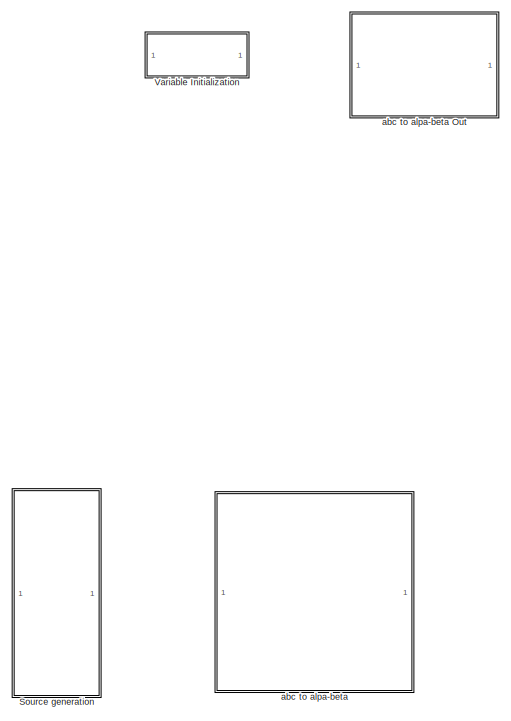
[diagram: root canvas - part 1/3, left side, full height]
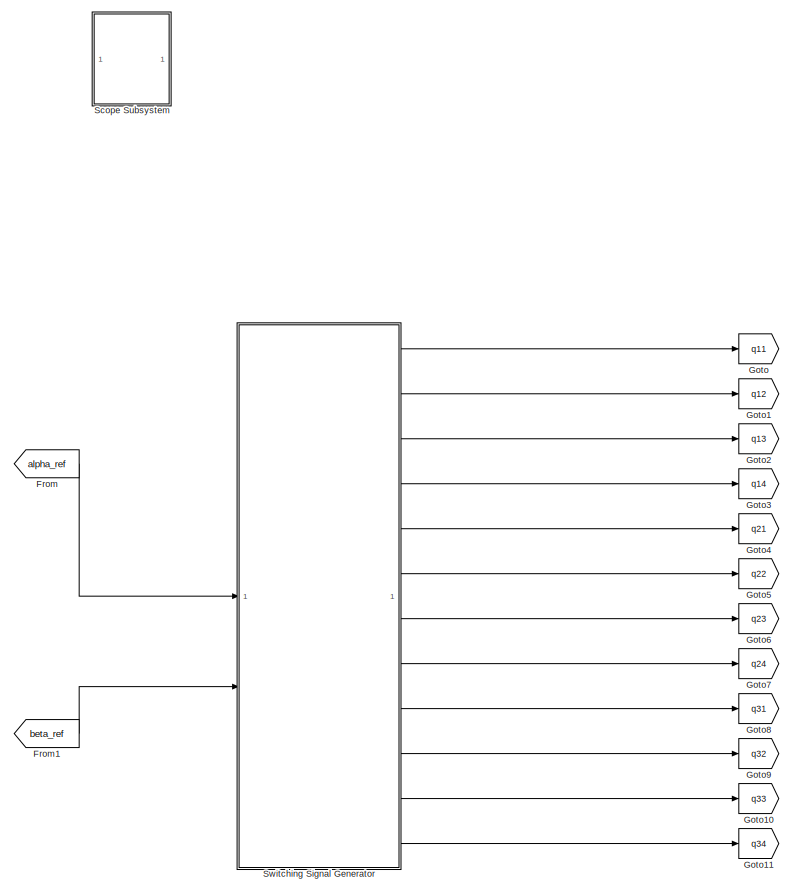
[diagram: root canvas - part 2/3, center side, full height]
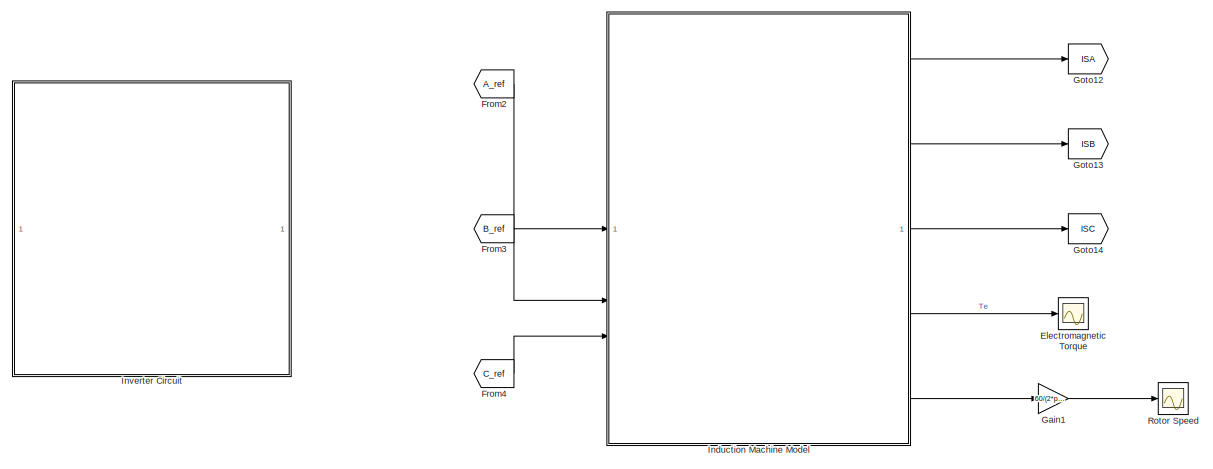
[diagram: root canvas - part 3/3, middle right region]
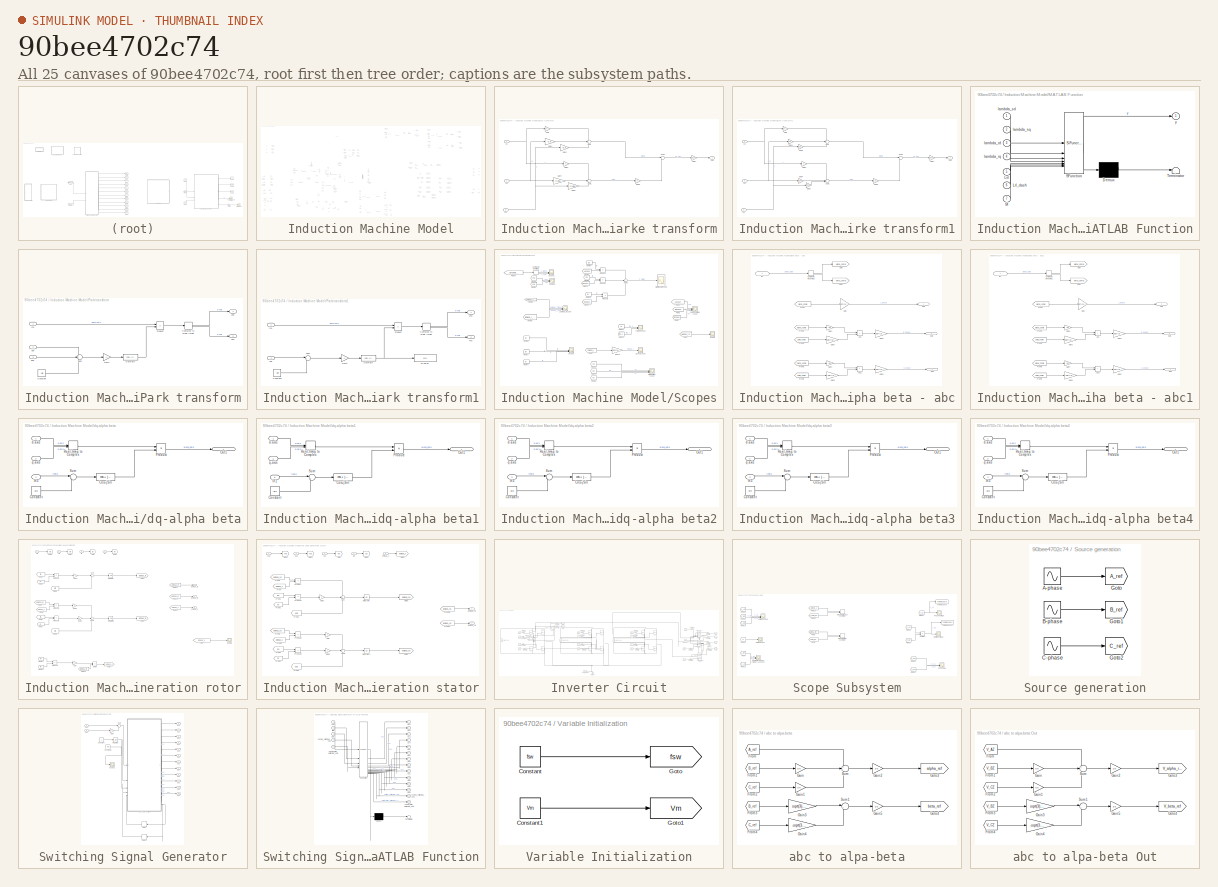
[diagram: thumbnail index - all 25 canvases of the model, root first then tree order]
MODEL slx_90bee4702c74
KIND model
CONFIG AbsTol = auto
CONFIG EnableMultiTasking = off
CONFIG FixedStep = 1/(100*fsw)
CONFIG MaxStep = auto
CONFIG MinStep = auto
CONFIG RelTol = 1e-3
CONFIG SampleTimeConstraint = Unconstrained
CONFIG SolverName = FixedStepAuto
CONFIG StartTime = 0.0
CONFIG StopTime = 200/fe
BLOCK [Scope] Electromagnetic Torque
  Floating = off
  NumInputPorts = 1
  ScopeSpecificationString = Simulink.scopes.TimeScopeBlockCfg('CurrentConfiguration', extmgr.ConfigurationSet(extmgr.Configuration('Core','General UI',true,'FigureColor',[1 1 1]),extmgr.Configuration('Core','Source UI',true),extmgr.Configuration('Sources','WiredSimulink',true,'DataLoggingVariableName','ScopeData3'),extmgr.Configuration('Visuals','Time Domain',true,'SerializedDisplays',{struct('MinYLimReal','-3.90961','MaxYLi...<+1606ch>
BLOCK [From] From
  GotoTag = alpha_ref
  TagVisibility = global
BLOCK [From] From1
  GotoTag = beta_ref
  TagVisibility = global
BLOCK [From] From2
  GotoTag = A_ref
  TagVisibility = global
BLOCK [From] From3
  GotoTag = B_ref
  TagVisibility = global
BLOCK [From] From4
  GotoTag = C_ref
  TagVisibility = global
BLOCK [Gain] Gain1
  Gain = 60/(2*pi)
BLOCK [Goto] Goto
  GotoTag = q11
  TagVisibility = global
BLOCK [Goto] Goto1
  GotoTag = q12
  TagVisibility = global
BLOCK [Goto] Goto10
  GotoTag = q33
  TagVisibility = global
BLOCK [Goto] Goto11
  GotoTag = q34
  TagVisibility = global
BLOCK [Goto] Goto12
  GotoTag = ISA
  TagVisibility = global
BLOCK [Goto] Goto13
  GotoTag = ISB
  TagVisibility = global
BLOCK [Goto] Goto14
  GotoTag = ISC
  TagVisibility = global
BLOCK [Goto] Goto2
  GotoTag = q13
  TagVisibility = global
BLOCK [Goto] Goto3
  GotoTag = q14
  TagVisibility = global
BLOCK [Goto] Goto4
  GotoTag = q21
  TagVisibility = global
BLOCK [Goto] Goto5
  GotoTag = q22
  TagVisibility = global
BLOCK [Goto] Goto6
  GotoTag = q23
  TagVisibility = global
BLOCK [Goto] Goto7
  GotoTag = q24
  TagVisibility = global
BLOCK [Goto] Goto8
  GotoTag = q31
  TagVisibility = global
BLOCK [Goto] Goto9
  GotoTag = q32
  TagVisibility = global
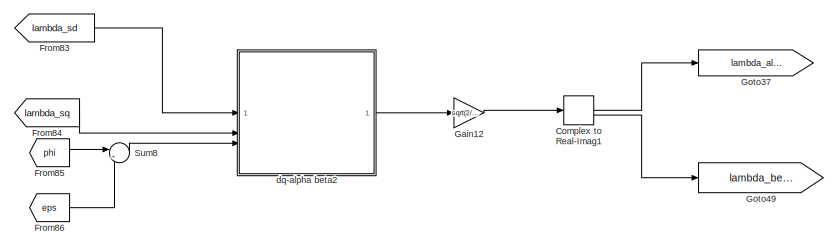
[diagram: Induction Machine Model - part 1/11, top center region]
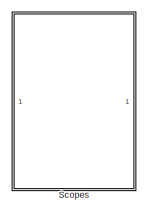
[diagram: Induction Machine Model - part 2/11, top center region]
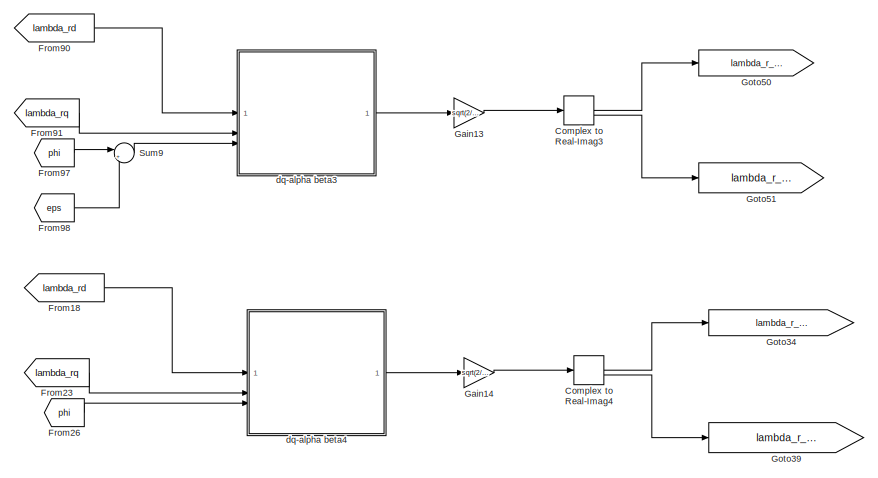
[diagram: Induction Machine Model - part 3/11, top right region]
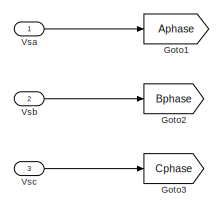
[diagram: Induction Machine Model - part 4/11, top left region]
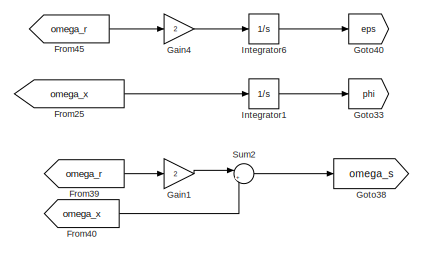
[diagram: Induction Machine Model - part 5/11, top center region]
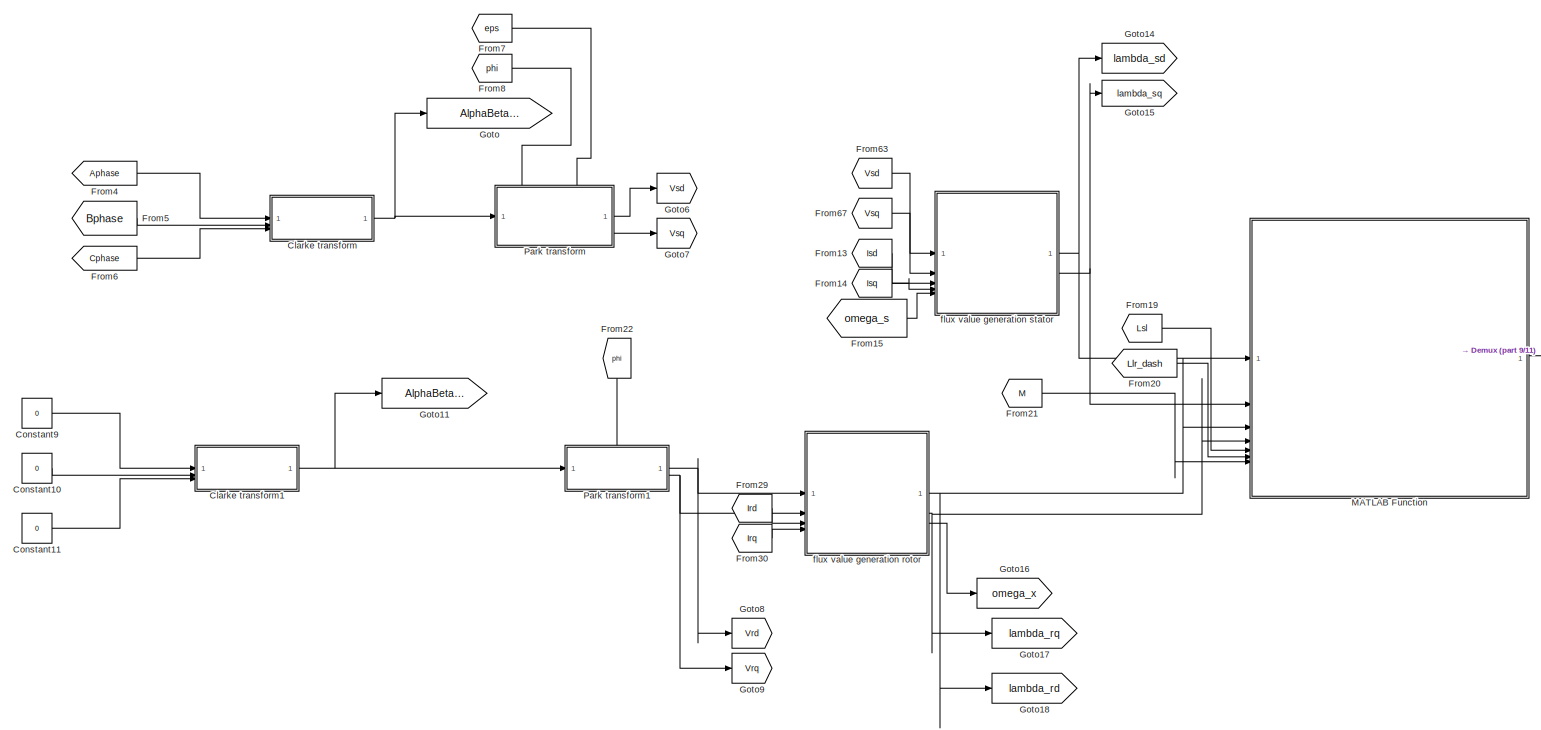
[diagram: Induction Machine Model - part 6/11, middle left region]
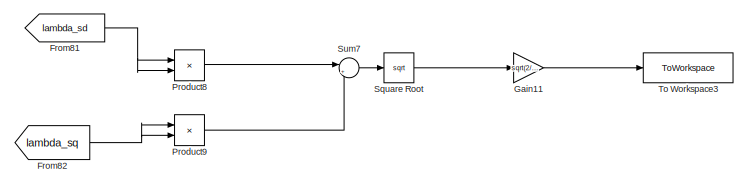
[diagram: Induction Machine Model - part 7/11, middle right region]
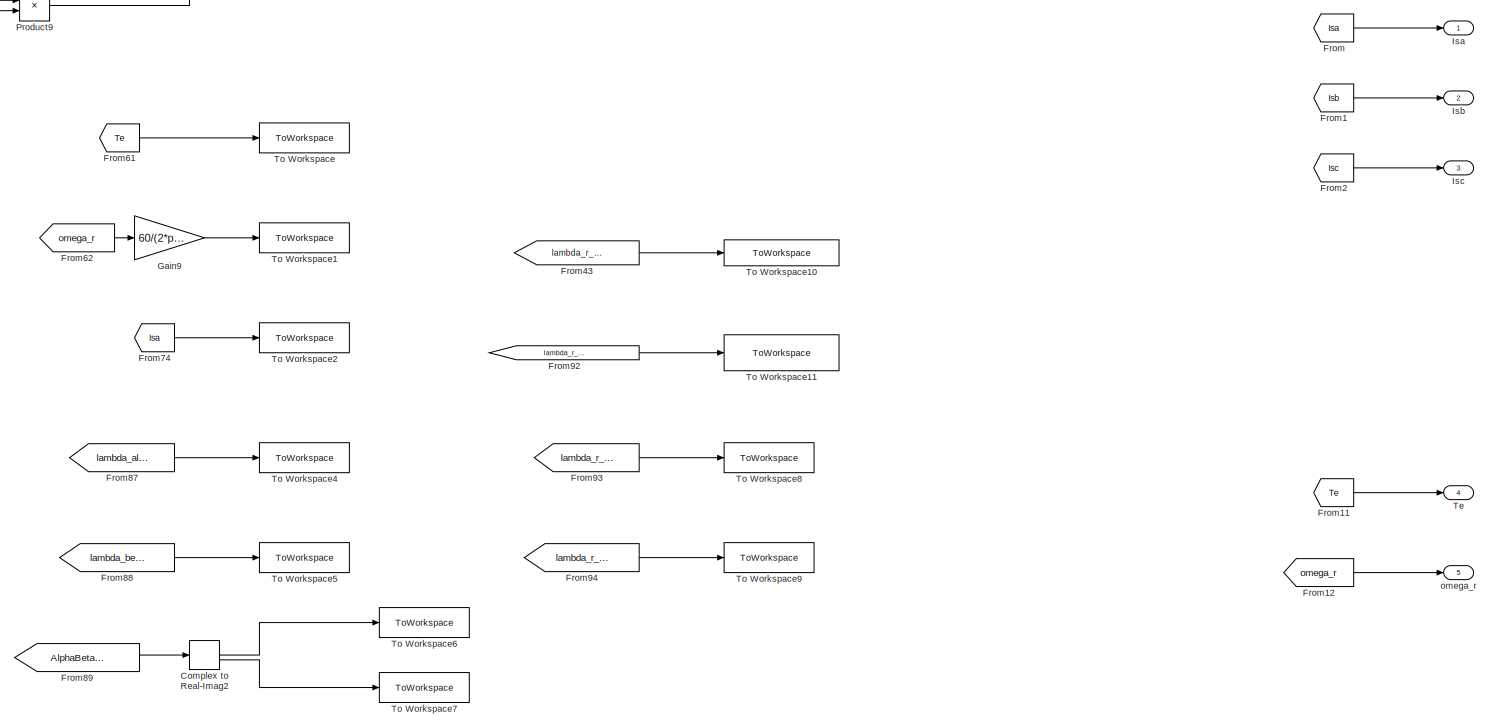
[diagram: Induction Machine Model - part 8/11, middle right region]
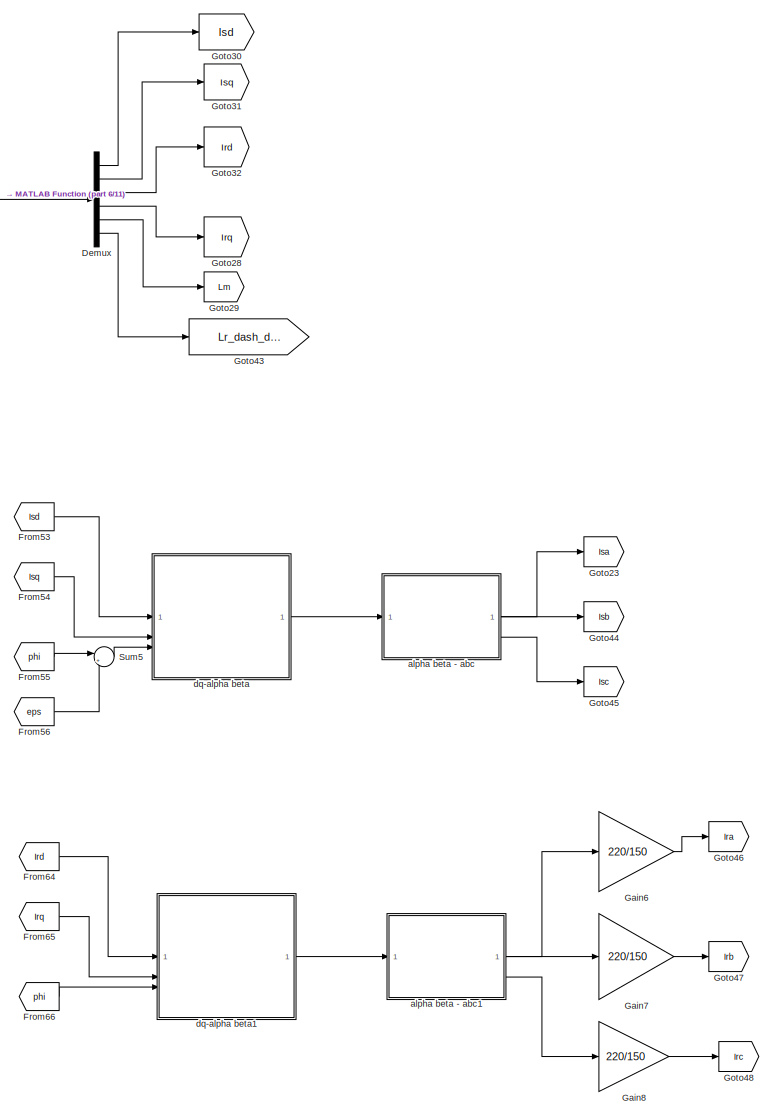
[diagram: Induction Machine Model - part 9/11, bottom center region]
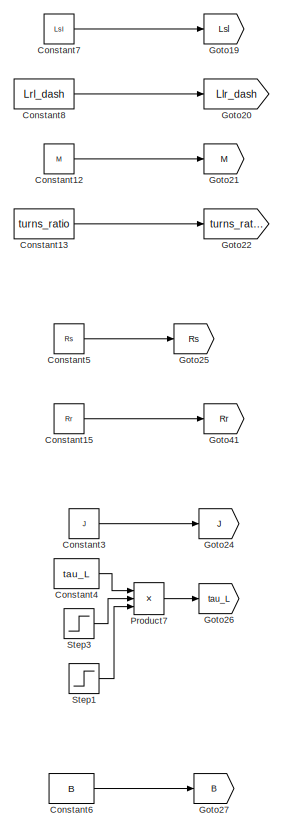
[diagram: Induction Machine Model - part 10/11, bottom left region]
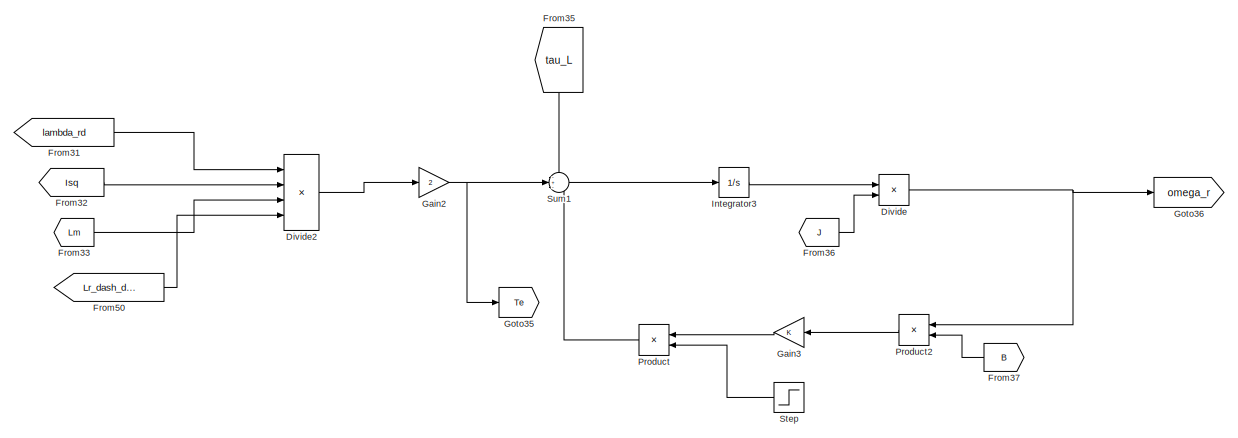
[diagram: Induction Machine Model - part 11/11, bottom left region]
BLOCK [SubSystem] Induction Machine Model
BLOCK [SubSystem] Induction Machine Model/Clarke transform
BLOCK [Gain] Induction Machine Model/Clarke transform/Gain
BLOCK [Gain] Induction Machine Model/Clarke transform/Gain1
  Gain = -0.5
BLOCK [Gain] Induction Machine Model/Clarke transform/Gain2
  Gain = -0.5
BLOCK [Gain] Induction Machine Model/Clarke transform/Gain3
  Gain = 0
BLOCK [Gain] Induction Machine Model/Clarke transform/Gain4
  Gain = 0.866
BLOCK [Gain] Induction Machine Model/Clarke transform/Gain5
  Gain = -0.866
BLOCK [Gain] Induction Machine Model/Clarke transform/Gain6
  Gain = 1j
BLOCK [Gain] Induction Machine Model/Clarke transform/Gain7
  Gain = 0.8165
BLOCK [Inport] Induction Machine Model/Clarke transform/In1
BLOCK [Inport] Induction Machine Model/Clarke transform/In2
  Port = 2
BLOCK [Inport] Induction Machine Model/Clarke transform/In3
  Port = 3
BLOCK [Outport] Induction Machine Model/Clarke transform/Out1
BLOCK [Sum] Induction Machine Model/Clarke transform/Sum
  Inputs = +++
BLOCK [Sum] Induction Machine Model/Clarke transform/Sum1
  Inputs = +++
BLOCK [Sum] Induction Machine Model/Clarke transform/Sum2
  Inputs = |++
BLOCK [SubSystem] Induction Machine Model/Clarke transform1
BLOCK [Gain] Induction Machine Model/Clarke transform1/Gain
BLOCK [Gain] Induction Machine Model/Clarke transform1/Gain1
  Gain = -0.5
BLOCK [Gain] Induction Machine Model/Clarke transform1/Gain2
  Gain = -0.5
BLOCK [Gain] Induction Machine Model/Clarke transform1/Gain3
  Gain = 0
BLOCK [Gain] Induction Machine Model/Clarke transform1/Gain4
  Gain = 0.866
BLOCK [Gain] Induction Machine Model/Clarke transform1/Gain5
  Gain = -0.866
BLOCK [Gain] Induction Machine Model/Clarke transform1/Gain6
  Gain = 1j
BLOCK [Gain] Induction Machine Model/Clarke transform1/Gain7
  Gain = 0.8165
BLOCK [Inport] Induction Machine Model/Clarke transform1/In1
BLOCK [Inport] Induction Machine Model/Clarke transform1/In2
  Port = 2
BLOCK [Inport] Induction Machine Model/Clarke transform1/In3
  Port = 3
BLOCK [Outport] Induction Machine Model/Clarke transform1/Out1
BLOCK [Sum] Induction Machine Model/Clarke transform1/Sum
  Inputs = +++
BLOCK [Sum] Induction Machine Model/Clarke transform1/Sum1
  Inputs = +++
BLOCK [Sum] Induction Machine Model/Clarke transform1/Sum2
  Inputs = |++
BLOCK [ComplexToRealImag] Induction Machine Model/Complex to Real-Imag1
BLOCK [ComplexToRealImag] Induction Machine Model/Complex to Real-Imag2
  Commented = on
BLOCK [ComplexToRealImag] Induction Machine Model/Complex to Real-Imag3
BLOCK [ComplexToRealImag] Induction Machine Model/Complex to Real-Imag4
BLOCK [Constant] Induction Machine Model/Constant10
  Value = 0
BLOCK [Constant] Induction Machine Model/Constant11
  Value = 0
BLOCK [Constant] Induction Machine Model/Constant12
  Value = M
BLOCK [Constant] Induction Machine Model/Constant13
  Value = turns_ratio
BLOCK [Constant] Induction Machine Model/Constant15
  Value = Rr
BLOCK [Constant] Induction Machine Model/Constant3
  Value = J
BLOCK [Constant] Induction Machine Model/Constant4
  Value = tau_L
BLOCK [Constant] Induction Machine Model/Constant5
  Value = Rs
BLOCK [Constant] Induction Machine Model/Constant6
  Value = B
BLOCK [Constant] Induction Machine Model/Constant7
  Value = Lsl
BLOCK [Constant] Induction Machine Model/Constant8
  Value = Lrl_dash
BLOCK [Constant] Induction Machine Model/Constant9
  Value = 0
BLOCK [Demux] Induction Machine Model/Demux
  Outputs = 6
BLOCK [Product] Induction Machine Model/Divide
  Inputs = */
BLOCK [Product] Induction Machine Model/Divide2
  Inputs = ***/
BLOCK [From] Induction Machine Model/From
  GotoTag = Isa
  TagVisibility = global
BLOCK [From] Induction Machine Model/From1
  GotoTag = Isb
  TagVisibility = global
BLOCK [From] Induction Machine Model/From11
  GotoTag = Te
  TagVisibility = global
BLOCK [From] Induction Machine Model/From12
  GotoTag = omega_r
  TagVisibility = global
BLOCK [From] Induction Machine Model/From13
  GotoTag = Isd
  TagVisibility = global
BLOCK [From] Induction Machine Model/From14
  GotoTag = Isq
  TagVisibility = global
BLOCK [From] Induction Machine Model/From15
  GotoTag = omega_s
  TagVisibility = global
BLOCK [From] Induction Machine Model/From18
  GotoTag = lambda_rd
  TagVisibility = global
BLOCK [From] Induction Machine Model/From19
  GotoTag = Lsl
  TagVisibility = global
BLOCK [From] Induction Machine Model/From2
  GotoTag = Isc
  TagVisibility = global
BLOCK [From] Induction Machine Model/From20
  GotoTag = Llr_dash
  TagVisibility = global
BLOCK [From] Induction Machine Model/From21
  GotoTag = M
  TagVisibility = global
BLOCK [From] Induction Machine Model/From22
  GotoTag = phi
  NameLocation = left
  TagVisibility = global
BLOCK [From] Induction Machine Model/From23
  GotoTag = lambda_rq
  TagVisibility = global
BLOCK [From] Induction Machine Model/From25
  GotoTag = omega_x
BLOCK [From] Induction Machine Model/From26
  GotoTag = phi
  TagVisibility = global
BLOCK [From] Induction Machine Model/From29
  GotoTag = Ird
BLOCK [From] Induction Machine Model/From30
  GotoTag = Irq
BLOCK [From] Induction Machine Model/From31
  GotoTag = lambda_rd
  TagVisibility = global
BLOCK [From] Induction Machine Model/From32
  GotoTag = Isq
  TagVisibility = global
BLOCK [From] Induction Machine Model/From33
  GotoTag = Lm
BLOCK [From] Induction Machine Model/From35
  GotoTag = tau_L
  NameLocation = left
  TagVisibility = global
BLOCK [From] Induction Machine Model/From36
  GotoTag = J
  TagVisibility = global
BLOCK [From] Induction Machine Model/From37
  GotoTag = B
  NameLocation = top
BLOCK [From] Induction Machine Model/From39
  GotoTag = omega_r
  TagVisibility = global
BLOCK [From] Induction Machine Model/From4
  GotoTag = Aphase
  TagVisibility = global
BLOCK [From] Induction Machine Model/From40
  GotoTag = omega_x
BLOCK [From] Induction Machine Model/From43
  Commented = on
  GotoTag = lambda_r_alpha_ref_r
  TagVisibility = global
BLOCK [From] Induction Machine Model/From45
  GotoTag = omega_r
  TagVisibility = global
BLOCK [From] Induction Machine Model/From5
  GotoTag = Bphase
  TagVisibility = global
BLOCK [From] Induction Machine Model/From50
  GotoTag = Lr_dash_dash
BLOCK [From] Induction Machine Model/From53
  GotoTag = Isd
  TagVisibility = global
BLOCK [From] Induction Machine Model/From54
  GotoTag = Isq
  TagVisibility = global
BLOCK [From] Induction Machine Model/From55
  GotoTag = phi
  TagVisibility = global
BLOCK [From] Induction Machine Model/From56
  GotoTag = eps
BLOCK [From] Induction Machine Model/From6
  GotoTag = Cphase
  TagVisibility = global
BLOCK [From] Induction Machine Model/From61
  Commented = on
  GotoTag = Te
  TagVisibility = global
BLOCK [From] Induction Machine Model/From62
  Commented = on
  GotoTag = omega_r
BLOCK [From] Induction Machine Model/From63
  GotoTag = Vsd
  TagVisibility = global
BLOCK [From] Induction Machine Model/From64
  GotoTag = Ird
BLOCK [From] Induction Machine Model/From65
  GotoTag = Irq
BLOCK [From] Induction Machine Model/From66
  GotoTag = phi
  TagVisibility = global
BLOCK [From] Induction Machine Model/From67
  GotoTag = Vsq
  TagVisibility = global
BLOCK [From] Induction Machine Model/From7
  GotoTag = eps
BLOCK [From] Induction Machine Model/From74
  Commented = on
  GotoTag = Isa
  TagVisibility = global
BLOCK [From] Induction Machine Model/From8
  GotoTag = phi
  TagVisibility = global
BLOCK [From] Induction Machine Model/From81
  Commented = on
  GotoTag = lambda_sd
BLOCK [From] Induction Machine Model/From82
  Commented = on
  GotoTag = lambda_sq
BLOCK [From] Induction Machine Model/From83
  GotoTag = lambda_sd
BLOCK [From] Induction Machine Model/From84
  GotoTag = lambda_sq
BLOCK [From] Induction Machine Model/From85
  GotoTag = phi
  TagVisibility = global
BLOCK [From] Induction Machine Model/From86
  GotoTag = eps
BLOCK [From] Induction Machine Model/From87
  Commented = on
  GotoTag = lambda_alpha
  TagVisibility = global
BLOCK [From] Induction Machine Model/From88
  Commented = on
  GotoTag = lambda_beta
  TagVisibility = global
BLOCK [From] Induction Machine Model/From89
  Commented = on
  GotoTag = AlphaBeta_stator
BLOCK [From] Induction Machine Model/From90
  GotoTag = lambda_rd
  TagVisibility = global
BLOCK [From] Induction Machine Model/From91
  GotoTag = lambda_rq
  TagVisibility = global
BLOCK [From] Induction Machine Model/From92
  Commented = on
  GotoTag = lambda_r_beta_ref_r
  TagVisibility = global
BLOCK [From] Induction Machine Model/From93
  Commented = on
  GotoTag = lambda_r_alpha
  TagVisibility = global
BLOCK [From] Induction Machine Model/From94
  Commented = on
  GotoTag = lambda_r_beta
  TagVisibility = global
BLOCK [From] Induction Machine Model/From97
  GotoTag = phi
  TagVisibility = global
BLOCK [From] Induction Machine Model/From98
  GotoTag = eps
BLOCK [Gain] Induction Machine Model/Gain1
  Gain = 2
BLOCK [Gain] Induction Machine Model/Gain11
  Commented = on
  Gain = sqrt(2/3)
BLOCK [Gain] Induction Machine Model/Gain12
  Gain = sqrt(2/3)
BLOCK [Gain] Induction Machine Model/Gain13
  Gain = sqrt(2/3)
BLOCK [Gain] Induction Machine Model/Gain14
  Gain = sqrt(2/3)
BLOCK [Gain] Induction Machine Model/Gain2
  Gain = 2
BLOCK [Gain] Induction Machine Model/Gain3
  NameLocation = top
BLOCK [Gain] Induction Machine Model/Gain4
  Gain = 2
BLOCK [Gain] Induction Machine Model/Gain6
  Gain = 220/150
BLOCK [Gain] Induction Machine Model/Gain7
  Gain = 220/150
BLOCK [Gain] Induction Machine Model/Gain8
  Gain = 220/150
BLOCK [Gain] Induction Machine Model/Gain9
  Commented = on
  Gain = 60/(2*pi)
BLOCK [Goto] Induction Machine Model/Goto
  GotoTag = AlphaBeta_stator
  TagVisibility = global
BLOCK [Goto] Induction Machine Model/Goto1
  GotoTag = Aphase
  TagVisibility = global
BLOCK [Goto] Induction Machine Model/Goto11
  GotoTag = AlphaBeta_rotor
  TagVisibility = global
BLOCK [Goto] Induction Machine Model/Goto14
  GotoTag = lambda_sd
BLOCK [Goto] Induction Machine Model/Goto15
  GotoTag = lambda_sq
BLOCK [Goto] Induction Machine Model/Goto16
  GotoTag = omega_x
BLOCK [Goto] Induction Machine Model/Goto17
  GotoTag = lambda_rq
  TagVisibility = global
BLOCK [Goto] Induction Machine Model/Goto18
  GotoTag = lambda_rd
  TagVisibility = global
BLOCK [Goto] Induction Machine Model/Goto19
  GotoTag = Lsl
  TagVisibility = global
BLOCK [Goto] Induction Machine Model/Goto2
  GotoTag = Bphase
  TagVisibility = global
BLOCK [Goto] Induction Machine Model/Goto20
  GotoTag = Llr_dash
  TagVisibility = global
BLOCK [Goto] Induction Machine Model/Goto21
  GotoTag = M
  TagVisibility = global
BLOCK [Goto] Induction Machine Model/Goto22
  GotoTag = turns_ratio
  TagVisibility = global
BLOCK [Goto] Induction Machine Model/Goto23
  GotoTag = Isa
  TagVisibility = global
BLOCK [Goto] Induction Machine Model/Goto24
  GotoTag = J
  TagVisibility = global
BLOCK [Goto] Induction Machine Model/Goto25
  GotoTag = Rs
  TagVisibility = global
BLOCK [Goto] Induction Machine Model/Goto26
  GotoTag = tau_L
  TagVisibility = global
BLOCK [Goto] Induction Machine Model/Goto27
  GotoTag = B
BLOCK [Goto] Induction Machine Model/Goto28
  GotoTag = Irq
BLOCK [Goto] Induction Machine Model/Goto29
  GotoTag = Lm
BLOCK [Goto] Induction Machine Model/Goto3
  GotoTag = Cphase
  TagVisibility = global
BLOCK [Goto] Induction Machine Model/Goto30
  GotoTag = Isd
  TagVisibility = global
BLOCK [Goto] Induction Machine Model/Goto31
  GotoTag = Isq
  TagVisibility = global
BLOCK [Goto] Induction Machine Model/Goto32
  GotoTag = Ird
BLOCK [Goto] Induction Machine Model/Goto33
  GotoTag = phi
  TagVisibility = global
BLOCK [Goto] Induction Machine Model/Goto34
  GotoTag = lambda_r_alpha_ref_r
  TagVisibility = global
BLOCK [Goto] Induction Machine Model/Goto35
  GotoTag = Te
  TagVisibility = global
BLOCK [Goto] Induction Machine Model/Goto36
  GotoTag = omega_r
  TagVisibility = global
BLOCK [Goto] Induction Machine Model/Goto37
  GotoTag = lambda_alpha
  TagVisibility = global
BLOCK [Goto] Induction Machine Model/Goto38
  GotoTag = omega_s
  TagVisibility = global
BLOCK [Goto] Induction Machine Model/Goto39
  GotoTag = lambda_r_beta_ref_r
  TagVisibility = global
BLOCK [Goto] Induction Machine Model/Goto40
  GotoTag = eps
BLOCK [Goto] Induction Machine Model/Goto41
  GotoTag = Rr
  TagVisibility = global
BLOCK [Goto] Induction Machine Model/Goto43
  GotoTag = Lr_dash_dash
BLOCK [Goto] Induction Machine Model/Goto44
  GotoTag = Isb
  TagVisibility = global
BLOCK [Goto] Induction Machine Model/Goto45
  GotoTag = Isc
  TagVisibility = global
BLOCK [Goto] Induction Machine Model/Goto46
  GotoTag = Ira
  TagVisibility = global
BLOCK [Goto] Induction Machine Model/Goto47
  GotoTag = Irb
  TagVisibility = global
BLOCK [Goto] Induction Machine Model/Goto48
  GotoTag = Irc
  TagVisibility = global
BLOCK [Goto] Induction Machine Model/Goto49
  GotoTag = lambda_beta
  TagVisibility = global
BLOCK [Goto] Induction Machine Model/Goto50
  GotoTag = lambda_r_alpha
  TagVisibility = global
BLOCK [Goto] Induction Machine Model/Goto51
  GotoTag = lambda_r_beta
  TagVisibility = global
BLOCK [Goto] Induction Machine Model/Goto6
  GotoTag = Vsd
  TagVisibility = global
BLOCK [Goto] Induction Machine Model/Goto7
  GotoTag = Vsq
  TagVisibility = global
BLOCK [Goto] Induction Machine Model/Goto8
  GotoTag = Vrd
  TagVisibility = global
BLOCK [Goto] Induction Machine Model/Goto9
  GotoTag = Vrq
  TagVisibility = global
BLOCK [Integrator] Induction Machine Model/Integrator1
  InitialCondition = 1e-4
BLOCK [Integrator] Induction Machine Model/Integrator3
BLOCK [Integrator] Induction Machine Model/Integrator6
  InitialCondition = 1e-4
BLOCK [Outport] Induction Machine Model/Isa
BLOCK [Outport] Induction Machine Model/Isb
  Port = 2
BLOCK [Outport] Induction Machine Model/Isc
  Port = 3
BLOCK [SubSystem] Induction Machine Model/MATLAB Function
  ErrorFcn = Stateflow.Translate.translate
  PermitHierarchicalResolution = ExplicitOnly
  SFBlockType = MATLAB Function
  TreatAsAtomicUnit = on
BLOCK [Demux] Induction Machine Model/MATLAB Function/ Demux 
  Outputs = 1
BLOCK [S-Function] Induction Machine Model/MATLAB Function/ SFunction 
  EnableBusSupport = on
  FunctionName = sf_sfun
  PortCounts = [7 2]
  SFcnIsStateOwnerBlock = off
  SFunctionDeploymentMode = off
  Tag = Stateflow S-Function 1
BLOCK [Terminator] Induction Machine Model/MATLAB Function/ Terminator 
BLOCK [Inport] Induction Machine Model/MATLAB Function/Lrl_dash
  Port = 6
BLOCK [Inport] Induction Machine Model/MATLAB Function/Lsl
  Port = 5
BLOCK [Inport] Induction Machine Model/MATLAB Function/M
  Port = 7
BLOCK [Inport] Induction Machine Model/MATLAB Function/lambda_rd
  Port = 3
BLOCK [Inport] Induction Machine Model/MATLAB Function/lambda_rq
  Port = 4
BLOCK [Inport] Induction Machine Model/MATLAB Function/lambda_sd
BLOCK [Inport] Induction Machine Model/MATLAB Function/lambda_sq
  Port = 2
BLOCK [Outport] Induction Machine Model/MATLAB Function/y
BLOCK [SubSystem] Induction Machine Model/Park transform
  PortSchema = {"entries":[{"content":{"sides":[{"content":{"connectorIds":["In1"]},"type":"ConnectorPlacement.EquallySpacedRectSide","uuid":"6c71d13c-178f-4a42-b33e-304e9d2b6e08"},{"content":{"connectorIds":["Out1","Out2"],"side":"RIGHT"},"type":"ConnectorPlacement.EquallySpacedRectSide","uuid":"2a6462c8-5182-4726-b418-a85255dbc142"},{"content":{"connectorIds":["In2","In3"],"side":"TOP"},"type":"ConnectorPlacem...<+258ch>
BLOCK [ComplexToRealImag] Induction Machine Model/Park transform/Complex to Real-Imag
BLOCK [Constant] Induction Machine Model/Park transform/Constant
  Value = -pi/2
BLOCK [Trigonometry] Induction Machine Model/Park transform/Cos+jSin
  Operator = cos + jsin
BLOCK [Gain] Induction Machine Model/Park transform/Gain
  Gain = -1
BLOCK [Inport] Induction Machine Model/Park transform/In1
BLOCK [Product] Induction Machine Model/Park transform/Product
BLOCK [Sum] Induction Machine Model/Park transform/Sum
  Inputs = +++
BLOCK [Outport] Induction Machine Model/Park transform/Vsd
BLOCK [Outport] Induction Machine Model/Park transform/Vsq
  Port = 2
BLOCK [Inport] Induction Machine Model/Park transform/eps
  Port = 3
BLOCK [Inport] Induction Machine Model/Park transform/phi
  Port = 2
BLOCK [SubSystem] Induction Machine Model/Park transform1
  PortSchema = {"entries":[{"content":{"sides":[{"content":{"connectorIds":["In1"]},"type":"ConnectorPlacement.EquallySpacedRectSide","uuid":"6c71d13c-178f-4a42-b33e-304e9d2b6e08"},{"content":{"connectorIds":["Out1","Out2"],"side":"RIGHT"},"type":"ConnectorPlacement.EquallySpacedRectSide","uuid":"2a6462c8-5182-4726-b418-a85255dbc142"},{"content":{"connectorIds":["In2"],"side":"TOP"},"type":"ConnectorPlacement.Eq...<+252ch>
BLOCK [ComplexToRealImag] Induction Machine Model/Park transform1/Complex to Real-Imag
BLOCK [Constant] Induction Machine Model/Park transform1/Constant
  Value = -pi/2
BLOCK [Trigonometry] Induction Machine Model/Park transform1/Cos+jSin
  Operator = cos + jsin
BLOCK [Display] Induction Machine Model/Park transform1/Display
  Decimation = 1
BLOCK [Gain] Induction Machine Model/Park transform1/Gain
  Gain = -1
BLOCK [Inport] Induction Machine Model/Park transform1/In1
BLOCK [Product] Induction Machine Model/Park transform1/Product
BLOCK [Sum] Induction Machine Model/Park transform1/Sum
  Inputs = |++
BLOCK [Outport] Induction Machine Model/Park transform1/Vrd
BLOCK [Outport] Induction Machine Model/Park transform1/Vrq
  Port = 2
BLOCK [Inport] Induction Machine Model/Park transform1/phi
  Port = 2
BLOCK [Product] Induction Machine Model/Product
  NameLocation = top
BLOCK [Product] Induction Machine Model/Product2
  NameLocation = top
BLOCK [Product] Induction Machine Model/Product7
  Inputs = 3
BLOCK [Product] Induction Machine Model/Product8
  Commented = on
BLOCK [Product] Induction Machine Model/Product9
  Commented = on
BLOCK [SubSystem] Induction Machine Model/Scopes
BLOCK [ComplexToRealImag] Induction Machine Model/Scopes/Complex to Real-Imag
BLOCK [From] Induction Machine Model/Scopes/From
  GotoTag = lambda_rd
  TagVisibility = global
BLOCK [From] Induction Machine Model/Scopes/From1
  GotoTag = Aphase
  TagVisibility = global
BLOCK [From] Induction Machine Model/Scopes/From2
  GotoTag = Bphase
  TagVisibility = global
BLOCK [From] Induction Machine Model/Scopes/From24
  GotoTag = AlphaBeta_stator
  TagVisibility = global
BLOCK [From] Induction Machine Model/Scopes/From3
  GotoTag = Cphase
  TagVisibility = global
BLOCK [From] Induction Machine Model/Scopes/From48
  GotoTag = Vsd
  TagVisibility = global
BLOCK [From] Induction Machine Model/Scopes/From52
  GotoTag = Vsq
  TagVisibility = global
BLOCK [From] Induction Machine Model/Scopes/From57
  GotoTag = Isa
  TagVisibility = global
BLOCK [From] Induction Machine Model/Scopes/From58
  GotoTag = Isb
  TagVisibility = global
BLOCK [From] Induction Machine Model/Scopes/From59
  GotoTag = Isc
  TagVisibility = global
BLOCK [From] Induction Machine Model/Scopes/From68
  GotoTag = Ira
  TagVisibility = global
BLOCK [From] Induction Machine Model/Scopes/From69
  GotoTag = Aphase
  TagVisibility = global
BLOCK [From] Induction Machine Model/Scopes/From70
  GotoTag = Bphase
  TagVisibility = global
BLOCK [From] Induction Machine Model/Scopes/From71
  GotoTag = Cphase
  TagVisibility = global
BLOCK [From] Induction Machine Model/Scopes/From72
  GotoTag = Irb
  TagVisibility = global
BLOCK [From] Induction Machine Model/Scopes/From73
  GotoTag = Irc
  TagVisibility = global
BLOCK [From] Induction Machine Model/Scopes/From75
  GotoTag = Te
  TagVisibility = global
BLOCK [From] Induction Machine Model/Scopes/From76
  GotoTag = tau_L
  TagVisibility = global
BLOCK [From] Induction Machine Model/Scopes/From77
  GotoTag = omega_r
  TagVisibility = global
BLOCK [From] Induction Machine Model/Scopes/From78
  GotoTag = Isa
  TagVisibility = global
BLOCK [From] Induction Machine Model/Scopes/From79
  GotoTag = Isb
  TagVisibility = global
BLOCK [From] Induction Machine Model/Scopes/From80
  GotoTag = Isc
  TagVisibility = global
BLOCK [From] Induction Machine Model/Scopes/From95
  GotoTag = lambda_r_alpha
  TagVisibility = global
BLOCK [From] Induction Machine Model/Scopes/From96
  GotoTag = lambda_r_beta
  TagVisibility = global
BLOCK [Gain] Induction Machine Model/Scopes/Gain10
  Gain = 60/(2*pi)
BLOCK [Scope] Induction Machine Model/Scopes/Lambda_r scope
  Floating = off
  NumInputPorts = 2
  ScopeSpecificationString = Simulink.scopes.TimeScopeBlockCfg('CurrentConfiguration', extmgr.ConfigurationSet(extmgr.Configuration('Core','General UI',true),extmgr.Configuration('Core','Source UI',true),extmgr.Configuration('Sources','WiredSimulink',true,'DataLoggingVariableName','ScopeData10','DataLoggingMaxPoints','10000'),extmgr.Configuration('Visuals','Time Domain',true,'SerializedDisplays',{struct('MinYLimReal','-0.5876...<+1510ch>
BLOCK [Product] Induction Machine Model/Scopes/Product4
BLOCK [Product] Induction Machine Model/Scopes/Product5
BLOCK [Product] Induction Machine Model/Scopes/Product6
BLOCK [Scope] Induction Machine Model/Scopes/Scope
  Floating = off
  NumInputPorts = 1
  ScopeSpecificationString = Simulink.scopes.TimeScopeBlockCfg('CurrentConfiguration', extmgr.ConfigurationSet(extmgr.Configuration('Core','General UI',true),extmgr.Configuration('Core','Source UI',true),extmgr.Configuration('Sources','WiredSimulink',true,'DataLoggingVariableName','ScopeData3'),extmgr.Configuration('Visuals','Time Domain',true,'SerializedDisplays',{struct('MinYLimReal','-0.07996','MaxYLimReal','0.71977','YLab...<+1477ch>
BLOCK [Scope] Induction Machine Model/Scopes/Scope2
  Floating = off
  NumInputPorts = 2
  ScopeSpecificationString = Simulink.scopes.TimeScopeBlockCfg('CurrentConfiguration', extmgr.ConfigurationSet(extmgr.Configuration('Core','General UI',true,'FigureColor',[1 1 1]),extmgr.Configuration('Core','Source UI',true),extmgr.Configuration('Sources','WiredSimulink',true,'DataLoggingVariableName','ScopeData2'),extmgr.Configuration('Visuals','Time Domain',true,'SerializedDisplays',{struct('MinYLimReal','-3119434180817549...<+2647ch>
BLOCK [Scope] Induction Machine Model/Scopes/Scope4
  Floating = off
  NumInputPorts = 2
  ScopeSpecificationString = Simulink.scopes.TimeScopeBlockCfg('CurrentConfiguration', extmgr.ConfigurationSet(extmgr.Configuration('Core','General UI',true,'FigureColor',[1 1 1]),extmgr.Configuration('Core','Source UI',true),extmgr.Configuration('Sources','WiredSimulink',true,'DataLoggingVariableName','ScopeData3','DataLoggingLimitDataPoints',true),extmgr.Configuration('Visuals','Time Domain',true,'SerializedDisplays',{struc...<+2375ch>
BLOCK [Scope] Induction Machine Model/Scopes/Scope6
  Floating = off
  NumInputPorts = 3
  ScopeSpecificationString = Simulink.scopes.TimeScopeBlockCfg('CurrentConfiguration', extmgr.ConfigurationSet(extmgr.Configuration('Core','General UI',true,'FigureColor',[1 1 1]),extmgr.Configuration('Core','Source UI',true),extmgr.Configuration('Sources','WiredSimulink',true,'DataLoggingVariableName','ScopeData6','DataLoggingLimitDataPoints',true,'DataLoggingMaxPoints','50000'),extmgr.Configuration('Visuals','Time Domain',t...<+2312ch>
BLOCK [Scope] Induction Machine Model/Scopes/Source voltage scope
  Floating = off
  NumInputPorts = 3
  ScopeSpecificationString = Simulink.scopes.TimeScopeBlockCfg('CurrentConfiguration', extmgr.ConfigurationSet(extmgr.Configuration('Core','General UI',true),extmgr.Configuration('Core','Source UI',true),extmgr.Configuration('Sources','WiredSimulink',true,'DataLoggingVariableName','ScopeData1','DataLoggingMaxPoints','1000'),extmgr.Configuration('Visuals','Time Domain',true,'SerializedDisplays',{struct('MinYLimReal','-224.5365...<+1606ch>
BLOCK [Scope] Induction Machine Model/Scopes/Speed scope
  Floating = off
  NumInputPorts = 1
  ScopeSpecificationString = Simulink.scopes.TimeScopeBlockCfg('CurrentConfiguration', extmgr.ConfigurationSet(extmgr.Configuration('Core','General UI',true,'FigureColor',[1 1 1]),extmgr.Configuration('Core','Source UI',true),extmgr.Configuration('Sources','WiredSimulink',true,'DataLoggingVariableName','ScopeData8'),extmgr.Configuration('Visuals','Time Domain',true,'SerializedDisplays',{struct('MinYLimReal','-0.0000004','MaxY...<+2314ch>
BLOCK [Scope] Induction Machine Model/Scopes/Stator current scope
  Floating = off
  NumInputPorts = 3
  ScopeSpecificationString = Simulink.scopes.TimeScopeBlockCfg('CurrentConfiguration', extmgr.ConfigurationSet(extmgr.Configuration('Core','General UI',true,'FigureColor',[1 1 1]),extmgr.Configuration('Core','Source UI',true),extmgr.Configuration('Sources','WiredSimulink',true,'DataLoggingVariableName','ScopeData9','DataLoggingLimitDataPoints',true),extmgr.Configuration('Visuals','Time Domain',true,'SerializedDisplays',{struc...<+2237ch>
BLOCK [Scope] Induction Machine Model/Scopes/Stator power scope
  Floating = off
  NumInputPorts = 1
  ScopeSpecificationString = Simulink.scopes.TimeScopeBlockCfg('CurrentConfiguration', extmgr.ConfigurationSet(extmgr.Configuration('Core','General UI',true,'FigureColor',[1 1 1]),extmgr.Configuration('Core','Source UI',true),extmgr.Configuration('Sources','WiredSimulink',true,'DataLoggingVariableName','ScopeData5','DataLoggingMaxPoints','50000'),extmgr.Configuration('Visuals','Time Domain',true,'SerializedDisplays',{struct('...<+2739ch>
BLOCK [Sum] Induction Machine Model/Scopes/Sum6
  Inputs = +++
BLOCK [Scope] Induction Machine Model/Scopes/Torque scope
  Floating = off
  NumInputPorts = 2
  ScopeSpecificationString = Simulink.scopes.TimeScopeBlockCfg('CurrentConfiguration', extmgr.ConfigurationSet(extmgr.Configuration('Core','General UI',true,'FigureColor',[1 1 1]),extmgr.Configuration('Core','Source UI',true),extmgr.Configuration('Sources','WiredSimulink',true,'DataLoggingVariableName','ScopeData7'),extmgr.Configuration('Visuals','Time Domain',true,'SerializedDisplays',{struct('MinYLimReal','-3.00625','MaxYLi...<+2312ch>
BLOCK [Sqrt] Induction Machine Model/Square Root
  Commented = on
BLOCK [Step] Induction Machine Model/Step
  NameLocation = top
  SampleTime = 0
  Time = 1e-3
BLOCK [Step] Induction Machine Model/Step1
  After = 0
  Before = 1
  SampleTime = 0
  Time = 8
BLOCK [Step] Induction Machine Model/Step3
  SampleTime = 0
  Time = 4
BLOCK [Sum] Induction Machine Model/Sum1
  Inputs = -+-
BLOCK [Sum] Induction Machine Model/Sum2
  Inputs = |++
BLOCK [Sum] Induction Machine Model/Sum5
  Inputs = |++
BLOCK [Sum] Induction Machine Model/Sum7
  Commented = on
  Inputs = |++
BLOCK [Sum] Induction Machine Model/Sum8
  Inputs = |++
BLOCK [Sum] Induction Machine Model/Sum9
  Inputs = |++
BLOCK [Outport] Induction Machine Model/Te
  Port = 4
BLOCK [ToWorkspace] Induction Machine Model/To Workspace
  Commented = on
  FixptAsFi = on
  MaxDataPoints = inf
  SampleTime = -1
  SaveFormat = Timeseries
  VariableName = Te
BLOCK [ToWorkspace] Induction Machine Model/To Workspace1
  Commented = on
  FixptAsFi = on
  MaxDataPoints = inf
  SampleTime = -1
  SaveFormat = Timeseries
  VariableName = omega_r
BLOCK [ToWorkspace] Induction Machine Model/To Workspace10
  Commented = on
  FixptAsFi = on
  MaxDataPoints = inf
  SampleTime = -1
  SaveFormat = Timeseries
  VariableName = lambda_r_alpha_r_ref
BLOCK [ToWorkspace] Induction Machine Model/To Workspace11
  Commented = on
  FixptAsFi = on
  MaxDataPoints = inf
  SampleTime = -1
  SaveFormat = Timeseries
  VariableName = lambda_r_beta_r_ref
BLOCK [ToWorkspace] Induction Machine Model/To Workspace2
  Commented = on
  FixptAsFi = on
  MaxDataPoints = inf
  SampleTime = -1
  SaveFormat = Timeseries
  VariableName = Isa
BLOCK [ToWorkspace] Induction Machine Model/To Workspace3
  Commented = on
  FixptAsFi = on
  MaxDataPoints = inf
  SampleTime = -1
  SaveFormat = Timeseries
  VariableName = lambda_s
BLOCK [ToWorkspace] Induction Machine Model/To Workspace4
  Commented = on
  FixptAsFi = on
  MaxDataPoints = inf
  SampleTime = -1
  SaveFormat = Timeseries
  VariableName = lambda_alpha
BLOCK [ToWorkspace] Induction Machine Model/To Workspace5
  Commented = on
  FixptAsFi = on
  MaxDataPoints = inf
  SampleTime = -1
  SaveFormat = Timeseries
  VariableName = lambda_beta
BLOCK [ToWorkspace] Induction Machine Model/To Workspace6
  Commented = on
  FixptAsFi = on
  MaxDataPoints = inf
  SampleTime = -1
  SaveFormat = Timeseries
  VariableName = Vs_alpha
BLOCK [ToWorkspace] Induction Machine Model/To Workspace7
  Commented = on
  FixptAsFi = on
  MaxDataPoints = inf
  SampleTime = -1
  SaveFormat = Timeseries
  VariableName = Vs_beta
BLOCK [ToWorkspace] Induction Machine Model/To Workspace8
  Commented = on
  FixptAsFi = on
  MaxDataPoints = inf
  SampleTime = -1
  SaveFormat = Timeseries
  VariableName = lambda_r_alpha
BLOCK [ToWorkspace] Induction Machine Model/To Workspace9
  Commented = on
  FixptAsFi = on
  MaxDataPoints = inf
  SampleTime = -1
  SaveFormat = Timeseries
  VariableName = lambda_r_beta
BLOCK [Inport] Induction Machine Model/Vsa
BLOCK [Inport] Induction Machine Model/Vsb
  Port = 2
BLOCK [Inport] Induction Machine Model/Vsc
  Port = 3
BLOCK [SubSystem] Induction Machine Model/alpha beta - abc
BLOCK [Sum] Induction Machine Model/alpha beta - abc/Add
  IconShape = rectangular
BLOCK [Sum] Induction Machine Model/alpha beta - abc/Add1
  IconShape = rectangular
BLOCK [ComplexToRealImag] Induction Machine Model/alpha beta - abc/Complex to Real-Imag
BLOCK [From] Induction Machine Model/alpha beta - abc/From
  GotoTag = alpha_comp
BLOCK [From] Induction Machine Model/alpha beta - abc/From1
  GotoTag = alpha_comp
BLOCK [From] Induction Machine Model/alpha beta - abc/From2
  GotoTag = beta_comp
BLOCK [From] Induction Machine Model/alpha beta - abc/From3
  GotoTag = alpha_comp
BLOCK [From] Induction Machine Model/alpha beta - abc/From4
  GotoTag = beta_comp
BLOCK [Gain] Induction Machine Model/alpha beta - abc/Gain
  Gain = sqrt(2/3)
BLOCK [Gain] Induction Machine Model/alpha beta - abc/Gain1
  Gain = -0.5
BLOCK [Gain] Induction Machine Model/alpha beta - abc/Gain2
  Gain = sqrt(3)/2
BLOCK [Gain] Induction Machine Model/alpha beta - abc/Gain3
  Gain = sqrt(2/3)
BLOCK [Gain] Induction Machine Model/alpha beta - abc/Gain4
  Gain = -0.5
BLOCK [Gain] Induction Machine Model/alpha beta - abc/Gain5
  Gain = -sqrt(3)/2
BLOCK [Gain] Induction Machine Model/alpha beta - abc/Gain6
  Gain = sqrt(2/3)
BLOCK [Goto] Induction Machine Model/alpha beta - abc/Goto
  GotoTag = alpha_comp
BLOCK [Goto] Induction Machine Model/alpha beta - abc/Goto1
  GotoTag = beta_comp
BLOCK [Inport] Induction Machine Model/alpha beta - abc/In1
  IconDisplay = Signal name
BLOCK [Outport] Induction Machine Model/alpha beta - abc/Out1
  IconDisplay = Signal name
BLOCK [Outport] Induction Machine Model/alpha beta - abc/Out2
  IconDisplay = Signal name
  Port = 2
BLOCK [Outport] Induction Machine Model/alpha beta - abc/Out3
  IconDisplay = Signal name
  Port = 3
BLOCK [SubSystem] Induction Machine Model/alpha beta - abc1
BLOCK [Sum] Induction Machine Model/alpha beta - abc1/Add
  IconShape = rectangular
BLOCK [Sum] Induction Machine Model/alpha beta - abc1/Add1
  IconShape = rectangular
BLOCK [ComplexToRealImag] Induction Machine Model/alpha beta - abc1/Complex to Real-Imag
BLOCK [From] Induction Machine Model/alpha beta - abc1/From
  GotoTag = alpha_comp
BLOCK [From] Induction Machine Model/alpha beta - abc1/From1
  GotoTag = alpha_comp
BLOCK [From] Induction Machine Model/alpha beta - abc1/From2
  GotoTag = beta_comp
BLOCK [From] Induction Machine Model/alpha beta - abc1/From3
  GotoTag = alpha_comp
BLOCK [From] Induction Machine Model/alpha beta - abc1/From4
  GotoTag = beta_comp
BLOCK [Gain] Induction Machine Model/alpha beta - abc1/Gain
  Gain = sqrt(2/3)
BLOCK [Gain] Induction Machine Model/alpha beta - abc1/Gain1
  Gain = -0.5
BLOCK [Gain] Induction Machine Model/alpha beta - abc1/Gain2
  Gain = sqrt(3)/2
BLOCK [Gain] Induction Machine Model/alpha beta - abc1/Gain3
  Gain = sqrt(2/3)
BLOCK [Gain] Induction Machine Model/alpha beta - abc1/Gain4
  Gain = -0.5
BLOCK [Gain] Induction Machine Model/alpha beta - abc1/Gain5
  Gain = -sqrt(3)/2
BLOCK [Gain] Induction Machine Model/alpha beta - abc1/Gain6
  Gain = sqrt(2/3)
BLOCK [Goto] Induction Machine Model/alpha beta - abc1/Goto
  GotoTag = alpha_comp
BLOCK [Goto] Induction Machine Model/alpha beta - abc1/Goto1
  GotoTag = beta_comp
BLOCK [Inport] Induction Machine Model/alpha beta - abc1/In1
  IconDisplay = Signal name
BLOCK [Outport] Induction Machine Model/alpha beta - abc1/Out1
  IconDisplay = Signal name
BLOCK [Outport] Induction Machine Model/alpha beta - abc1/Out2
  IconDisplay = Signal name
  Port = 2
BLOCK [Outport] Induction Machine Model/alpha beta - abc1/Out3
  IconDisplay = Signal name
  Port = 3
BLOCK [SubSystem] Induction Machine Model/dq-alpha beta
BLOCK [Constant] Induction Machine Model/dq-alpha beta/Constant
  Value = -pi/2
BLOCK [Trigonometry] Induction Machine Model/dq-alpha beta/Cos+jSin
  Operator = cos + jsin
BLOCK [Inport] Induction Machine Model/dq-alpha beta/In3
  IconDisplay = Signal name
  Port = 3
BLOCK [Outport] Induction Machine Model/dq-alpha beta/Out1
  IconDisplay = Signal name
BLOCK [Product] Induction Machine Model/dq-alpha beta/Product
BLOCK [RealImagToComplex] Induction Machine Model/dq-alpha beta/Real-Imag to Complex
BLOCK [Sum] Induction Machine Model/dq-alpha beta/Sum
  Inputs = |++
BLOCK [Inport] Induction Machine Model/dq-alpha beta/d-axis
BLOCK [Inport] Induction Machine Model/dq-alpha beta/q-axis
  Port = 2
BLOCK [SubSystem] Induction Machine Model/dq-alpha beta1
BLOCK [Constant] Induction Machine Model/dq-alpha beta1/Constant
  Value = -pi/2
BLOCK [Trigonometry] Induction Machine Model/dq-alpha beta1/Cos+jSin
  Operator = cos + jsin
BLOCK [Inport] Induction Machine Model/dq-alpha beta1/In1
  IconDisplay = Signal name
  Port = 3
BLOCK [Outport] Induction Machine Model/dq-alpha beta1/Out1
  IconDisplay = Signal name
BLOCK [Product] Induction Machine Model/dq-alpha beta1/Product
BLOCK [RealImagToComplex] Induction Machine Model/dq-alpha beta1/Real-Imag to Complex
BLOCK [Sum] Induction Machine Model/dq-alpha beta1/Sum
  Inputs = |++
BLOCK [Inport] Induction Machine Model/dq-alpha beta1/d-axis
BLOCK [Inport] Induction Machine Model/dq-alpha beta1/q-axis
  Port = 2
BLOCK [SubSystem] Induction Machine Model/dq-alpha beta2
BLOCK [Constant] Induction Machine Model/dq-alpha beta2/Constant
  Value = -pi/2
BLOCK [Trigonometry] Induction Machine Model/dq-alpha beta2/Cos+jSin
  Operator = cos + jsin
BLOCK [Inport] Induction Machine Model/dq-alpha beta2/In3
  IconDisplay = Signal name
  Port = 3
BLOCK [Outport] Induction Machine Model/dq-alpha beta2/Out1
  IconDisplay = Signal name
BLOCK [Product] Induction Machine Model/dq-alpha beta2/Product
BLOCK [RealImagToComplex] Induction Machine Model/dq-alpha beta2/Real-Imag to Complex
BLOCK [Sum] Induction Machine Model/dq-alpha beta2/Sum
  Inputs = |++
BLOCK [Inport] Induction Machine Model/dq-alpha beta2/d-axis
BLOCK [Inport] Induction Machine Model/dq-alpha beta2/q-axis
  Port = 2
BLOCK [SubSystem] Induction Machine Model/dq-alpha beta3
BLOCK [Constant] Induction Machine Model/dq-alpha beta3/Constant
  Value = -pi/2
BLOCK [Trigonometry] Induction Machine Model/dq-alpha beta3/Cos+jSin
  Operator = cos + jsin
BLOCK [Inport] Induction Machine Model/dq-alpha beta3/In3
  IconDisplay = Signal name
  Port = 3
BLOCK [Outport] Induction Machine Model/dq-alpha beta3/Out1
  IconDisplay = Signal name
BLOCK [Product] Induction Machine Model/dq-alpha beta3/Product
BLOCK [RealImagToComplex] Induction Machine Model/dq-alpha beta3/Real-Imag to Complex
BLOCK [Sum] Induction Machine Model/dq-alpha beta3/Sum
  Inputs = |++
BLOCK [Inport] Induction Machine Model/dq-alpha beta3/d-axis
BLOCK [Inport] Induction Machine Model/dq-alpha beta3/q-axis
  Port = 2
BLOCK [SubSystem] Induction Machine Model/dq-alpha beta4
BLOCK [Constant] Induction Machine Model/dq-alpha beta4/Constant
  Value = -pi/2
BLOCK [Trigonometry] Induction Machine Model/dq-alpha beta4/Cos+jSin
  Operator = cos + jsin
BLOCK [Inport] Induction Machine Model/dq-alpha beta4/In3
  IconDisplay = Signal name
  Port = 3
BLOCK [Outport] Induction Machine Model/dq-alpha beta4/Out1
  IconDisplay = Signal name
BLOCK [Product] Induction Machine Model/dq-alpha beta4/Product
BLOCK [RealImagToComplex] Induction Machine Model/dq-alpha beta4/Real-Imag to Complex
BLOCK [Sum] Induction Machine Model/dq-alpha beta4/Sum
  Inputs = |++
BLOCK [Inport] Induction Machine Model/dq-alpha beta4/d-axis
BLOCK [Inport] Induction Machine Model/dq-alpha beta4/q-axis
  Port = 2
BLOCK [SubSystem] Induction Machine Model/flux value generation rotor
BLOCK [Product] Induction Machine Model/flux value generation rotor/Divide
  Inputs = */
BLOCK [From] Induction Machine Model/flux value generation rotor/From
  GotoTag = omega_x
BLOCK [From] Induction Machine Model/flux value generation rotor/From1
  GotoTag = Ird
BLOCK [From] Induction Machine Model/flux value generation rotor/From10
  GotoTag = lambda_rd
BLOCK [From] Induction Machine Model/flux value generation rotor/From11
  GotoTag = lambda_rq
BLOCK [From] Induction Machine Model/flux value generation rotor/From12
  GotoTag = Rr
  TagVisibility = global
BLOCK [From] Induction Machine Model/flux value generation rotor/From13
  GotoTag = Irq
BLOCK [From] Induction Machine Model/flux value generation rotor/From15
  GotoTag = lambda_rd
BLOCK [From] Induction Machine Model/flux value generation rotor/From16
  GotoTag = omega_x
BLOCK [From] Induction Machine Model/flux value generation rotor/From2
  GotoTag = Rr
  TagVisibility = global
BLOCK [From] Induction Machine Model/flux value generation rotor/From3
  GotoTag = Vrd
BLOCK [From] Induction Machine Model/flux value generation rotor/From5
  GotoTag = omega_x
BLOCK [From] Induction Machine Model/flux value generation rotor/From6
  GotoTag = Irq
BLOCK [From] Induction Machine Model/flux value generation rotor/From7
  GotoTag = Rr
  TagVisibility = global
BLOCK [From] Induction Machine Model/flux value generation rotor/From8
  GotoTag = Vrq
BLOCK [From] Induction Machine Model/flux value generation rotor/From9
  GotoTag = lambda_rd
BLOCK [Gain] Induction Machine Model/flux value generation rotor/Gain
  Gain = -1
BLOCK [Gain] Induction Machine Model/flux value generation rotor/Gain1
  Gain = -1
BLOCK [Gain] Induction Machine Model/flux value generation rotor/Gain2
  Gain = -1
BLOCK [Gain] Induction Machine Model/flux value generation rotor/Gain3
  Gain = -1
BLOCK [Goto] Induction Machine Model/flux value generation rotor/Goto
  GotoTag = Ird
BLOCK [Goto] Induction Machine Model/flux value generation rotor/Goto1
  GotoTag = Irq
BLOCK [Goto] Induction Machine Model/flux value generation rotor/Goto3
  GotoTag = Vrd
BLOCK [Goto] Induction Machine Model/flux value generation rotor/Goto4
  GotoTag = Vrq
BLOCK [Goto] Induction Machine Model/flux value generation rotor/Goto5
  GotoTag = lambda_rd
BLOCK [Goto] Induction Machine Model/flux value generation rotor/Goto6
  GotoTag = lambda_rq
BLOCK [Goto] Induction Machine Model/flux value generation rotor/Goto7
  GotoTag = omega_x
BLOCK [Integrator] Induction Machine Model/flux value generation rotor/Integrator
  InitialCondition = 1e-5
BLOCK [Integrator] Induction Machine Model/flux value generation rotor/Integrator1
  InitialCondition = 1e-5
BLOCK [Inport] Induction Machine Model/flux value generation rotor/Ird
  Port = 3
BLOCK [Inport] Induction Machine Model/flux value generation rotor/Irq
  Port = 4
BLOCK [Product] Induction Machine Model/flux value generation rotor/Product1
BLOCK [Product] Induction Machine Model/flux value generation rotor/Product2
BLOCK [Product] Induction Machine Model/flux value generation rotor/Product3
BLOCK [Product] Induction Machine Model/flux value generation rotor/Product4
BLOCK [Scope] Induction Machine Model/flux value generation rotor/Scope
  Floating = off
  NumInputPorts = 1
  ScopeSpecificationString = Simulink.scopes.TimeScopeBlockCfg('CurrentConfiguration', extmgr.ConfigurationSet(extmgr.Configuration('Core','General UI',true),extmgr.Configuration('Core','Source UI',true),extmgr.Configuration('Sources','WiredSimulink',true,'DataLoggingVariableName','ScopeData1'),extmgr.Configuration('Visuals','Time Domain',true,'SerializedDisplays',{struct('MinYLimReal','-268.67123','MaxYLimReal','29.85193','Y...<+1786ch>
BLOCK [Sum] Induction Machine Model/flux value generation rotor/Sum
  Inputs = |++
BLOCK [Sum] Induction Machine Model/flux value generation rotor/Sum1
  Inputs = +++
BLOCK [Inport] Induction Machine Model/flux value generation rotor/Vrd
BLOCK [Inport] Induction Machine Model/flux value generation rotor/Vrq
  Port = 2
BLOCK [Outport] Induction Machine Model/flux value generation rotor/lambda_rd
BLOCK [Outport] Induction Machine Model/flux value generation rotor/lambda_rq
  Port = 2
BLOCK [Outport] Induction Machine Model/flux value generation rotor/omega_X
  Port = 3
BLOCK [SubSystem] Induction Machine Model/flux value generation stator
BLOCK [From] Induction Machine Model/flux value generation stator/From
  GotoTag = omega_s
BLOCK [From] Induction Machine Model/flux value generation stator/From1
  GotoTag = Isd
BLOCK [From] Induction Machine Model/flux value generation stator/From10
  GotoTag = lambda_sd
BLOCK [From] Induction Machine Model/flux value generation stator/From11
  GotoTag = lambda_sq
BLOCK [From] Induction Machine Model/flux value generation stator/From2
  GotoTag = Rs
  TagVisibility = global
BLOCK [From] Induction Machine Model/flux value generation stator/From3
  GotoTag = Vsd
BLOCK [From] Induction Machine Model/flux value generation stator/From4
  GotoTag = lambda_sq
BLOCK [From] Induction Machine Model/flux value generation stator/From5
  GotoTag = omega_s
BLOCK [From] Induction Machine Model/flux value generation stator/From6
  GotoTag = Isq
BLOCK [From] Induction Machine Model/flux value generation stator/From7
  GotoTag = Rs
  TagVisibility = global
BLOCK [From] Induction Machine Model/flux value generation stator/From8
  GotoTag = Vsq
BLOCK [From] Induction Machine Model/flux value generation stator/From9
  GotoTag = lambda_sd
BLOCK [Gain] Induction Machine Model/flux value generation stator/Gain
  Gain = -1
BLOCK [Gain] Induction Machine Model/flux value generation stator/Gain1
  Gain = -1
BLOCK [Gain] Induction Machine Model/flux value generation stator/Gain2
  Gain = -1
BLOCK [Goto] Induction Machine Model/flux value generation stator/Goto
  GotoTag = Isd
BLOCK [Goto] Induction Machine Model/flux value generation stator/Goto1
  GotoTag = Isq
BLOCK [Goto] Induction Machine Model/flux value generation stator/Goto2
  GotoTag = omega_s
BLOCK [Goto] Induction Machine Model/flux value generation stator/Goto3
  GotoTag = Vsd
BLOCK [Goto] Induction Machine Model/flux value generation stator/Goto4
  GotoTag = Vsq
BLOCK [Goto] Induction Machine Model/flux value generation stator/Goto5
  GotoTag = lambda_sd
BLOCK [Goto] Induction Machine Model/flux value generation stator/Goto6
  GotoTag = lambda_sq
BLOCK [Integrator] Induction Machine Model/flux value generation stator/Integrator
BLOCK [Integrator] Induction Machine Model/flux value generation stator/Integrator1
BLOCK [Inport] Induction Machine Model/flux value generation stator/Isd
  Port = 3
BLOCK [Inport] Induction Machine Model/flux value generation stator/Isq
  Port = 4
BLOCK [Product] Induction Machine Model/flux value generation stator/Product
BLOCK [Product] Induction Machine Model/flux value generation stator/Product1
BLOCK [Product] Induction Machine Model/flux value generation stator/Product2
BLOCK [Product] Induction Machine Model/flux value generation stator/Product3
BLOCK [Sum] Induction Machine Model/flux value generation stator/Sum
  Inputs = +++
BLOCK [Sum] Induction Machine Model/flux value generation stator/Sum1
  Inputs = +++
BLOCK [Inport] Induction Machine Model/flux value generation stator/Vsd
BLOCK [Inport] Induction Machine Model/flux value generation stator/Vsq
  Port = 2
BLOCK [Outport] Induction Machine Model/flux value generation stator/lambda_sd
BLOCK [Outport] Induction Machine Model/flux value generation stator/lambda_sq
  Port = 2
BLOCK [Inport] Induction Machine Model/flux value generation stator/omega_s
  Port = 5
BLOCK [Outport] Induction Machine Model/omega_r
  Port = 5
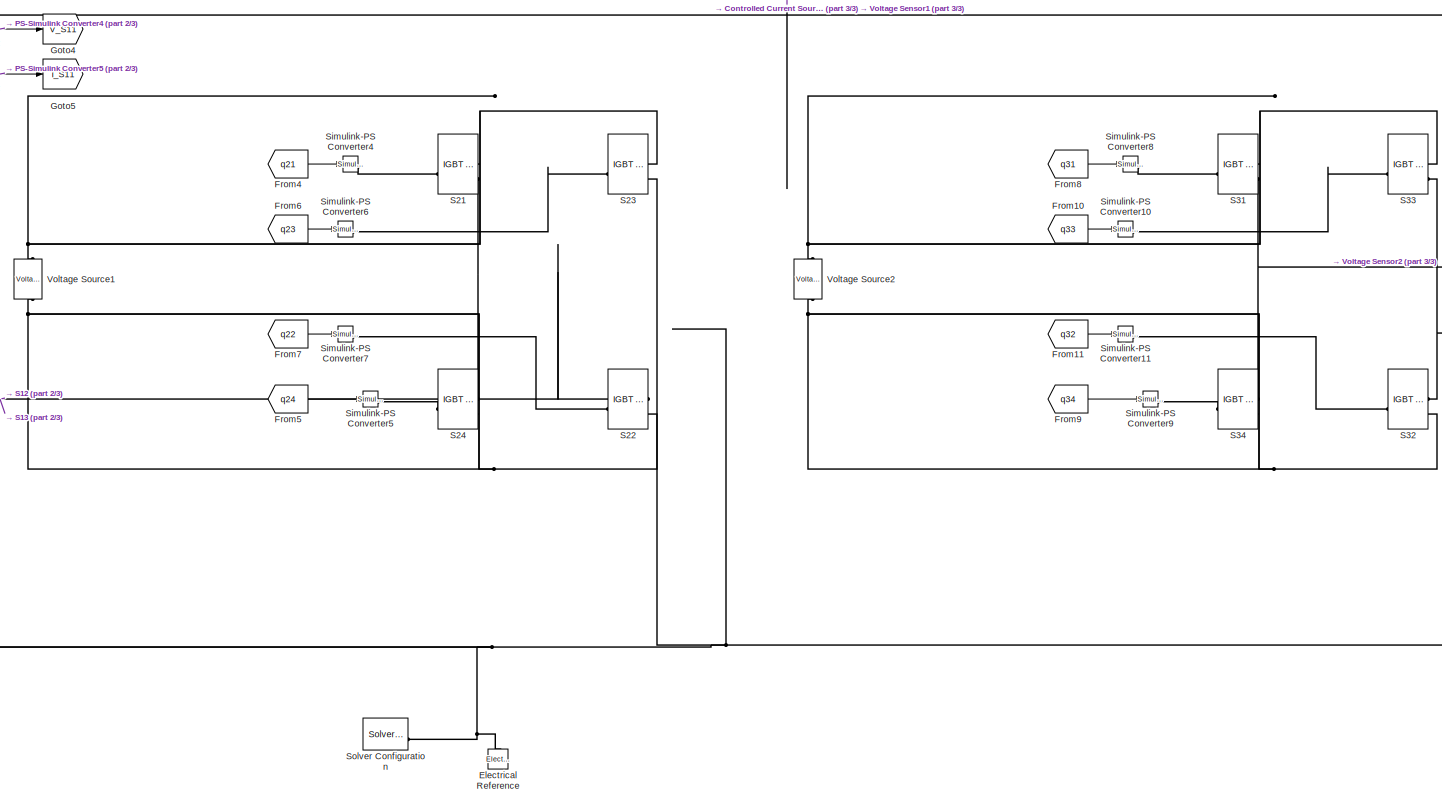
[diagram: Inverter Circuit - part 1/3, center side, full height]
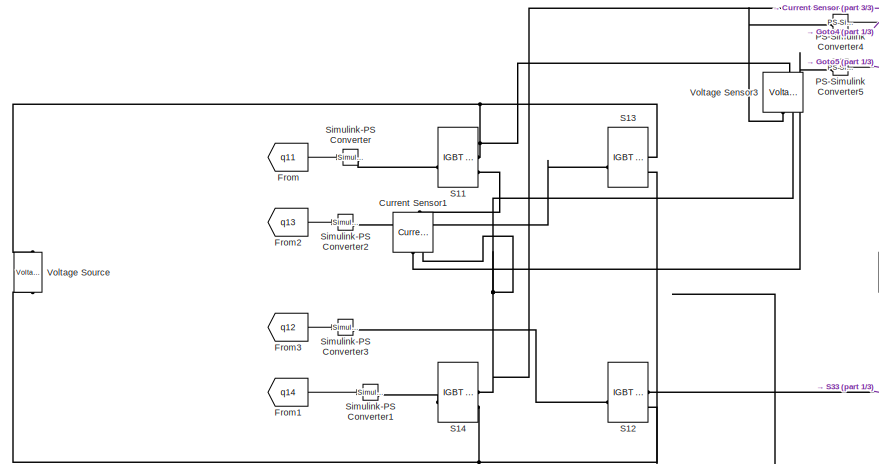
[diagram: Inverter Circuit - part 2/3, middle left region]
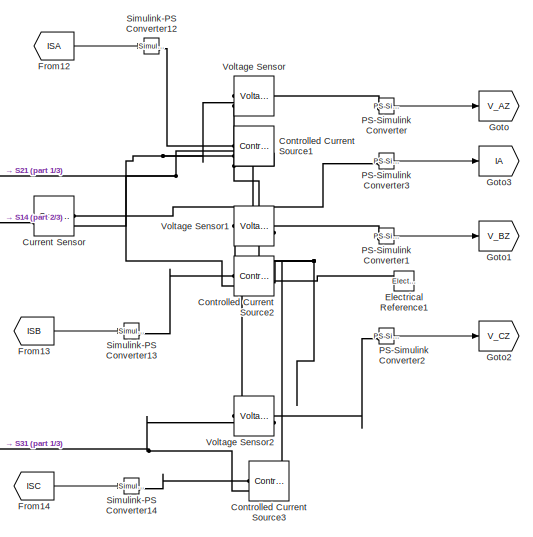
[diagram: Inverter Circuit - part 3/3, middle right region]
BLOCK [SubSystem] Inverter Circuit
BLOCK [Reference] Inverter Circuit/Controlled Current Source1  REF=fl_lib/Electrical/Electrical Sources/Controlled Current
Source
  SourceBlock = fl_lib/Electrical/Electrical Sources/Controlled Current\nSource
  SourceType = Controlled Current\nSource
BLOCK [Reference] Inverter Circuit/Controlled Current Source2  REF=fl_lib/Electrical/Electrical Sources/Controlled Current
Source
  SourceBlock = fl_lib/Electrical/Electrical Sources/Controlled Current\nSource
  SourceType = Controlled Current\nSource
BLOCK [Reference] Inverter Circuit/Controlled Current Source3  REF=fl_lib/Electrical/Electrical Sources/Controlled Current
Source
  SourceBlock = fl_lib/Electrical/Electrical Sources/Controlled Current\nSource
  SourceType = Controlled Current\nSource
BLOCK [Reference] Inverter Circuit/Current Sensor  REF=fl_lib/Electrical/Electrical Sensors/Current Sensor
  SourceBlock = fl_lib/Electrical/Electrical Sensors/Current Sensor
  SourceType = Current Sensor
BLOCK [Reference] Inverter Circuit/Current Sensor1  REF=fl_lib/Electrical/Electrical Sensors/Current Sensor
  NameLocation = left
  SourceBlock = fl_lib/Electrical/Electrical Sensors/Current Sensor
  SourceType = Current Sensor
BLOCK [Reference] Inverter Circuit/Electrical Reference  REF=fl_lib/Electrical/Electrical Elements/Electrical Reference
  LibrarySourceBlock = ee_lib/Connectors &\nReferences/Electrical Reference
  NameLocation = right
  SourceBlock = fl_lib/Electrical/Electrical Elements/Electrical Reference
  SourceType = Electrical Reference
BLOCK [Reference] Inverter Circuit/Electrical Reference1  REF=fl_lib/Electrical/Electrical Elements/Electrical Reference
  LibrarySourceBlock = ee_lib/Connectors &\nReferences/Electrical Reference
  NameLocation = right
  SourceBlock = fl_lib/Electrical/Electrical Elements/Electrical Reference
  SourceType = Electrical Reference
BLOCK [From] Inverter Circuit/From
  GotoTag = q11
  TagVisibility = global
BLOCK [From] Inverter Circuit/From1
  GotoTag = q14
  TagVisibility = global
BLOCK [From] Inverter Circuit/From10
  GotoTag = q33
  TagVisibility = global
BLOCK [From] Inverter Circuit/From11
  GotoTag = q32
  TagVisibility = global
BLOCK [From] Inverter Circuit/From12
  GotoTag = ISA
  TagVisibility = global
BLOCK [From] Inverter Circuit/From13
  GotoTag = ISB
  TagVisibility = global
BLOCK [From] Inverter Circuit/From14
  GotoTag = ISC
  TagVisibility = global
BLOCK [From] Inverter Circuit/From2
  GotoTag = q13
  TagVisibility = global
BLOCK [From] Inverter Circuit/From3
  GotoTag = q12
  TagVisibility = global
BLOCK [From] Inverter Circuit/From4
  GotoTag = q21
  TagVisibility = global
BLOCK [From] Inverter Circuit/From5
  GotoTag = q24
  TagVisibility = global
BLOCK [From] Inverter Circuit/From6
  GotoTag = q23
  TagVisibility = global
BLOCK [From] Inverter Circuit/From7
  GotoTag = q22
  TagVisibility = global
BLOCK [From] Inverter Circuit/From8
  GotoTag = q31
  TagVisibility = global
BLOCK [From] Inverter Circuit/From9
  GotoTag = q34
  TagVisibility = global
BLOCK [Goto] Inverter Circuit/Goto
  GotoTag = V_AZ
  TagVisibility = global
BLOCK [Goto] Inverter Circuit/Goto1
  GotoTag = V_BZ
  TagVisibility = global
BLOCK [Goto] Inverter Circuit/Goto2
  GotoTag = V_CZ
  TagVisibility = global
BLOCK [Goto] Inverter Circuit/Goto3
  GotoTag = IA
  TagVisibility = global
BLOCK [Goto] Inverter Circuit/Goto4
  GotoTag = V_S11
  TagVisibility = global
BLOCK [Goto] Inverter Circuit/Goto5
  GotoTag = I_S11
  TagVisibility = global
BLOCK [Reference] Inverter Circuit/PS-Simulink Converter  REF=nesl_utility/PS-Simulink
Converter
  SourceBlock = nesl_utility/PS-Simulink\nConverter
  SourceType = PS-Simulink\nConverter
BLOCK [Reference] Inverter Circuit/PS-Simulink Converter1  REF=nesl_utility/PS-Simulink
Converter
  SourceBlock = nesl_utility/PS-Simulink\nConverter
  SourceType = PS-Simulink\nConverter
BLOCK [Reference] Inverter Circuit/PS-Simulink Converter2  REF=nesl_utility/PS-Simulink
Converter
  SourceBlock = nesl_utility/PS-Simulink\nConverter
  SourceType = PS-Simulink\nConverter
BLOCK [Reference] Inverter Circuit/PS-Simulink Converter3  REF=nesl_utility/PS-Simulink
Converter
  SourceBlock = nesl_utility/PS-Simulink\nConverter
  SourceType = PS-Simulink\nConverter
BLOCK [Reference] Inverter Circuit/PS-Simulink Converter4  REF=nesl_utility/PS-Simulink
Converter
  SourceBlock = nesl_utility/PS-Simulink\nConverter
  SourceType = PS-Simulink\nConverter
BLOCK [Reference] Inverter Circuit/PS-Simulink Converter5  REF=nesl_utility/PS-Simulink
Converter
  SourceBlock = nesl_utility/PS-Simulink\nConverter
  SourceType = PS-Simulink\nConverter
BLOCK [Reference] Inverter Circuit/S11  REF=ee_lib/Semiconductors &
Converters/IGBT
(Ideal,
Switching)
  SourceBlock = ee_lib/Semiconductors &\nConverters/IGBT\n(Ideal,\nSwitching)
  SourceType = IGBT\n(Ideal,\nSwitching)
BLOCK [Reference] Inverter Circuit/S12  REF=ee_lib/Semiconductors &
Converters/IGBT
(Ideal,
Switching)
  SourceBlock = ee_lib/Semiconductors &\nConverters/IGBT\n(Ideal,\nSwitching)
  SourceType = IGBT\n(Ideal,\nSwitching)
BLOCK [Reference] Inverter Circuit/S13  REF=ee_lib/Semiconductors &
Converters/IGBT
(Ideal,
Switching)
  SourceBlock = ee_lib/Semiconductors &\nConverters/IGBT\n(Ideal,\nSwitching)
  SourceType = IGBT\n(Ideal,\nSwitching)
BLOCK [Reference] Inverter Circuit/S14  REF=ee_lib/Semiconductors &
Converters/IGBT
(Ideal,
Switching)
  SourceBlock = ee_lib/Semiconductors &\nConverters/IGBT\n(Ideal,\nSwitching)
  SourceType = IGBT\n(Ideal,\nSwitching)
BLOCK [Reference] Inverter Circuit/S21  REF=ee_lib/Semiconductors &
Converters/IGBT
(Ideal,
Switching)
  SourceBlock = ee_lib/Semiconductors &\nConverters/IGBT\n(Ideal,\nSwitching)
  SourceType = IGBT\n(Ideal,\nSwitching)
BLOCK [Reference] Inverter Circuit/S22  REF=ee_lib/Semiconductors &
Converters/IGBT
(Ideal,
Switching)
  SourceBlock = ee_lib/Semiconductors &\nConverters/IGBT\n(Ideal,\nSwitching)
  SourceType = IGBT\n(Ideal,\nSwitching)
BLOCK [Reference] Inverter Circuit/S23  REF=ee_lib/Semiconductors &
Converters/IGBT
(Ideal,
Switching)
  SourceBlock = ee_lib/Semiconductors &\nConverters/IGBT\n(Ideal,\nSwitching)
  SourceType = IGBT\n(Ideal,\nSwitching)
BLOCK [Reference] Inverter Circuit/S24  REF=ee_lib/Semiconductors &
Converters/IGBT
(Ideal,
Switching)
  SourceBlock = ee_lib/Semiconductors &\nConverters/IGBT\n(Ideal,\nSwitching)
  SourceType = IGBT\n(Ideal,\nSwitching)
BLOCK [Reference] Inverter Circuit/S31  REF=ee_lib/Semiconductors &
Converters/IGBT
(Ideal,
Switching)
  SourceBlock = ee_lib/Semiconductors &\nConverters/IGBT\n(Ideal,\nSwitching)
  SourceType = IGBT\n(Ideal,\nSwitching)
BLOCK [Reference] Inverter Circuit/S32  REF=ee_lib/Semiconductors &
Converters/IGBT
(Ideal,
Switching)
  SourceBlock = ee_lib/Semiconductors &\nConverters/IGBT\n(Ideal,\nSwitching)
  SourceType = IGBT\n(Ideal,\nSwitching)
BLOCK [Reference] Inverter Circuit/S33  REF=ee_lib/Semiconductors &
Converters/IGBT
(Ideal,
Switching)
  SourceBlock = ee_lib/Semiconductors &\nConverters/IGBT\n(Ideal,\nSwitching)
  SourceType = IGBT\n(Ideal,\nSwitching)
BLOCK [Reference] Inverter Circuit/S34  REF=ee_lib/Semiconductors &
Converters/IGBT
(Ideal,
Switching)
  SourceBlock = ee_lib/Semiconductors &\nConverters/IGBT\n(Ideal,\nSwitching)
  SourceType = IGBT\n(Ideal,\nSwitching)
BLOCK [Reference] Inverter Circuit/Simulink-PS Converter  REF=nesl_utility/Simulink-PS
Converter
  SourceBlock = nesl_utility/Simulink-PS\nConverter
  SourceType = Simulink-PS\nConverter
BLOCK [Reference] Inverter Circuit/Simulink-PS Converter1  REF=nesl_utility/Simulink-PS
Converter
  SourceBlock = nesl_utility/Simulink-PS\nConverter
  SourceType = Simulink-PS\nConverter
BLOCK [Reference] Inverter Circuit/Simulink-PS Converter10  REF=nesl_utility/Simulink-PS
Converter
  SourceBlock = nesl_utility/Simulink-PS\nConverter
  SourceType = Simulink-PS\nConverter
BLOCK [Reference] Inverter Circuit/Simulink-PS Converter11  REF=nesl_utility/Simulink-PS
Converter
  SourceBlock = nesl_utility/Simulink-PS\nConverter
  SourceType = Simulink-PS\nConverter
BLOCK [Reference] Inverter Circuit/Simulink-PS Converter12  REF=nesl_utility/Simulink-PS
Converter
  SourceBlock = nesl_utility/Simulink-PS\nConverter
  SourceType = Simulink-PS\nConverter
BLOCK [Reference] Inverter Circuit/Simulink-PS Converter13  REF=nesl_utility/Simulink-PS
Converter
  SourceBlock = nesl_utility/Simulink-PS\nConverter
  SourceType = Simulink-PS\nConverter
BLOCK [Reference] Inverter Circuit/Simulink-PS Converter14  REF=nesl_utility/Simulink-PS
Converter
  SourceBlock = nesl_utility/Simulink-PS\nConverter
  SourceType = Simulink-PS\nConverter
BLOCK [Reference] Inverter Circuit/Simulink-PS Converter2  REF=nesl_utility/Simulink-PS
Converter
  SourceBlock = nesl_utility/Simulink-PS\nConverter
  SourceType = Simulink-PS\nConverter
BLOCK [Reference] Inverter Circuit/Simulink-PS Converter3  REF=nesl_utility/Simulink-PS
Converter
  SourceBlock = nesl_utility/Simulink-PS\nConverter
  SourceType = Simulink-PS\nConverter
BLOCK [Reference] Inverter Circuit/Simulink-PS Converter4  REF=nesl_utility/Simulink-PS
Converter
  SourceBlock = nesl_utility/Simulink-PS\nConverter
  SourceType = Simulink-PS\nConverter
BLOCK [Reference] Inverter Circuit/Simulink-PS Converter5  REF=nesl_utility/Simulink-PS
Converter
  SourceBlock = nesl_utility/Simulink-PS\nConverter
  SourceType = Simulink-PS\nConverter
BLOCK [Reference] Inverter Circuit/Simulink-PS Converter6  REF=nesl_utility/Simulink-PS
Converter
  SourceBlock = nesl_utility/Simulink-PS\nConverter
  SourceType = Simulink-PS\nConverter
BLOCK [Reference] Inverter Circuit/Simulink-PS Converter7  REF=nesl_utility/Simulink-PS
Converter
  SourceBlock = nesl_utility/Simulink-PS\nConverter
  SourceType = Simulink-PS\nConverter
BLOCK [Reference] Inverter Circuit/Simulink-PS Converter8  REF=nesl_utility/Simulink-PS
Converter
  SourceBlock = nesl_utility/Simulink-PS\nConverter
  SourceType = Simulink-PS\nConverter
BLOCK [Reference] Inverter Circuit/Simulink-PS Converter9  REF=nesl_utility/Simulink-PS
Converter
  SourceBlock = nesl_utility/Simulink-PS\nConverter
  SourceType = Simulink-PS\nConverter
BLOCK [Reference] Inverter Circuit/Solver Configuration  REF=nesl_utility/Solver
Configuration
  SourceBlock = nesl_utility/Solver\nConfiguration
  SourceType = Solver\nConfiguration
BLOCK [Reference] Inverter Circuit/Voltage Sensor  REF=fl_lib/Electrical/Electrical Sensors/Voltage Sensor
  NameLocation = top
  SourceBlock = fl_lib/Electrical/Electrical Sensors/Voltage Sensor
  SourceType = Voltage Sensor
BLOCK [Reference] Inverter Circuit/Voltage Sensor1  REF=fl_lib/Electrical/Electrical Sensors/Voltage Sensor
  NameLocation = top
  SourceBlock = fl_lib/Electrical/Electrical Sensors/Voltage Sensor
  SourceType = Voltage Sensor
BLOCK [Reference] Inverter Circuit/Voltage Sensor2  REF=fl_lib/Electrical/Electrical Sensors/Voltage Sensor
  NameLocation = top
  SourceBlock = fl_lib/Electrical/Electrical Sensors/Voltage Sensor
  SourceType = Voltage Sensor
BLOCK [Reference] Inverter Circuit/Voltage Sensor3  REF=fl_lib/Electrical/Electrical Sensors/Voltage Sensor
  NameLocation = right
  SourceBlock = fl_lib/Electrical/Electrical Sensors/Voltage Sensor
  SourceType = Voltage Sensor
BLOCK [Reference] Inverter Circuit/Voltage Source  REF=ee_lib/Sources/Voltage Source
  NameLocation = right
  SourceBlock = ee_lib/Sources/Voltage Source
  SourceType = Voltage Source
BLOCK [Reference] Inverter Circuit/Voltage Source1  REF=ee_lib/Sources/Voltage Source
  NameLocation = right
  SourceBlock = ee_lib/Sources/Voltage Source
  SourceType = Voltage Source
BLOCK [Reference] Inverter Circuit/Voltage Source2  REF=ee_lib/Sources/Voltage Source
  NameLocation = right
  SourceBlock = ee_lib/Sources/Voltage Source
  SourceType = Voltage Source
BLOCK [Scope] Rotor Speed
  Floating = off
  NumInputPorts = 1
  ScopeSpecificationString = Simulink.scopes.TimeScopeBlockCfg('CurrentConfiguration', extmgr.ConfigurationSet(extmgr.Configuration('Core','General UI',true),extmgr.Configuration('Core','Source UI',true),extmgr.Configuration('Sources','WiredSimulink',true,'DataLoggingVariableName','ScopeData1'),extmgr.Configuration('Visuals','Time Domain',true,'SerializedDisplays',{struct('MinYLimReal','2854.31319','MaxYLimReal','2855.8715','...<+1546ch>
BLOCK [SubSystem] Scope Subsystem
BLOCK [Scope] Scope Subsystem/Compare A phase voltage with reference A phase
  Floating = off
  NumInputPorts = 2
  ScopeSpecificationString = Simulink.scopes.TimeScopeBlockCfg('CurrentConfiguration', extmgr.ConfigurationSet(extmgr.Configuration('Core','General UI',true,'FigureColor',[1 1 1]),extmgr.Configuration('Core','Source UI',true),extmgr.Configuration('Sources','WiredSimulink',true,'DataLoggingVariableName','ScopeData1'),extmgr.Configuration('Visuals','Time Domain',true,'SerializedDisplays',{struct('MinYLimReal','-26.61945','MaxYL...<+2501ch>
BLOCK [Scope] Scope Subsystem/Current Scope
  Floating = off
  NumInputPorts = 1
  ScopeSpecificationString = Simulink.scopes.TimeScopeBlockCfg('CurrentConfiguration', extmgr.ConfigurationSet(extmgr.Configuration('Core','General UI',true),extmgr.Configuration('Core','Source UI',true),extmgr.Configuration('Sources','WiredSimulink',true,'DataLoggingVariableName','ScopeData1'),extmgr.Configuration('Visuals','Time Domain',true,'SerializedDisplays',{struct('MinYLimReal','-12.11384','MaxYLimReal','13.76874','YL...<+1547ch>
BLOCK [From] Scope Subsystem/From
  GotoTag = A_ref
  TagVisibility = global
BLOCK [From] Scope Subsystem/From1
  GotoTag = alpha_ref
  TagVisibility = global
BLOCK [From] Scope Subsystem/From15
  GotoTag = V_AZ
  TagVisibility = global
BLOCK [From] Scope Subsystem/From16
  GotoTag = V_BZ
  TagVisibility = global
BLOCK [From] Scope Subsystem/From17
  GotoTag = V_CZ
  TagVisibility = global
BLOCK [From] Scope Subsystem/From18
  GotoTag = IA
  TagVisibility = global
BLOCK [From] Scope Subsystem/From19
  GotoTag = V_alpha_ref
  TagVisibility = global
BLOCK [From] Scope Subsystem/From2
  GotoTag = beta_ref
  TagVisibility = global
BLOCK [From] Scope Subsystem/From20
  GotoTag = V_beta_ref
  TagVisibility = global
BLOCK [From] Scope Subsystem/From21
  GotoTag = V_AZ
  TagVisibility = global
BLOCK [From] Scope Subsystem/From25
  GotoTag = V_AZ
  TagVisibility = global
BLOCK [From] Scope Subsystem/From26
  GotoTag = V_BZ
  TagVisibility = global
BLOCK [From] Scope Subsystem/From27
  GotoTag = V_AZ
  TagVisibility = global
BLOCK [From] Scope Subsystem/From29
  GotoTag = V_S11
  TagVisibility = global
BLOCK [From] Scope Subsystem/From30
  GotoTag = I_S11
  TagVisibility = global
BLOCK [Scope] Scope Subsystem/Lin-to-line voltage
  Floating = off
  NumInputPorts = 1
  ScopeSpecificationString = Simulink.scopes.TimeScopeBlockCfg('CurrentConfiguration', extmgr.ConfigurationSet(extmgr.Configuration('Core','General UI',true,'FigureColor',[1 1 1]),extmgr.Configuration('Core','Source UI',true),extmgr.Configuration('Sources','WiredSimulink',true,'DataLoggingVariableName','ScopeData1'),extmgr.Configuration('Visuals','Time Domain',true,'SerializedDisplays',{struct('MinYLimReal','-500.00227','MaxY...<+1595ch>
BLOCK [Scope] Scope Subsystem/Phase Voltage
  Floating = off
  NumInputPorts = 1
  ScopeSpecificationString = Simulink.scopes.TimeScopeBlockCfg('CurrentConfiguration', extmgr.ConfigurationSet(extmgr.Configuration('Core','General UI',true,'FigureColor',[1 1 1]),extmgr.Configuration('Core','Source UI',true),extmgr.Configuration('Sources','WiredSimulink',true,'DataLoggingVariableName','ScopeData4'),extmgr.Configuration('Visuals','Time Domain',true,'SerializedDisplays',{struct('MinYLimReal','-3.78863','MaxYLi...<+2353ch>
BLOCK [Scope] Scope Subsystem/S11 Scope
  Floating = off
  NumInputPorts = 2
  ScopeSpecificationString = Simulink.scopes.TimeScopeBlockCfg('CurrentConfiguration', extmgr.ConfigurationSet(extmgr.Configuration('Core','General UI',true,'FigureColor',[1 1 1]),extmgr.Configuration('Core','Source UI',true),extmgr.Configuration('Sources','WiredSimulink',true,'DataLoggingVariableName','ScopeData2'),extmgr.Configuration('Visuals','Time Domain',true,'SerializedDisplays',{struct('MinYLimReal','-24.19654','MaxYL...<+2286ch>
BLOCK [Sum] Scope Subsystem/Subtract
  IconShape = rectangular
  Inputs = +-
BLOCK [ToWorkspace] Scope Subsystem/To Workspace
  FixptAsFi = on
  MaxDataPoints = inf
  SampleTime = -1
  VariableName = v_az
BLOCK [ToWorkspace] Scope Subsystem/To Workspace1
  FixptAsFi = on
  MaxDataPoints = inf
  SampleTime = -1
  VariableName = v_ab
BLOCK [Scope] Scope Subsystem/Voltage Scope
  Floating = off
  NumInputPorts = 3
  ScopeSpecificationString = Simulink.scopes.TimeScopeBlockCfg('CurrentConfiguration', extmgr.ConfigurationSet(extmgr.Configuration('Core','General UI',true,'FigureColor',[1 1 1]),extmgr.Configuration('Core','Source UI',true),extmgr.Configuration('Sources','WiredSimulink',true,'DataLoggingVariableName','ScopeData1','DataLoggingMaxPoints','100*fsw/fe'),extmgr.Configuration('Visuals','Time Domain',true,'SerializedDisplays',{str...<+3931ch>
BLOCK [Record] Scope Subsystem/alpha-beta Vout vector plot
  CompatibilityTag = XY
  FileSettingsInternal = {"entries":[{"content":{"excelSettings":{"content":{},"type":"Streamout.ExcelSettings"}},"type":"Streamout.FileSettingStorage","uuid":""}],"packageUris":["http:\/\/schema.mathworks.com\/mf0\/streamout_blocks\/R2020a"],"version":"1.0"}
  Layout = [1 1]
  SignalsInternal = {"entries":[{"content":{"signals":[{"content":{"blockPath":[],"dimensions":[1],"domain":"","lineColor":"#a2142f","port":1,"sid":[""],"signalID":1,"signalName":"From1"},"type":"RecordBlkView.Signal","uuid":""},{"content":{"blockPath":[],"dimensions":[1],"domain":"","lineColor":"#139fff","port":2,"sid":[""],"signalID":2,"signalName":"From2"},"type":"RecordBlkView.Signal","uuid":""},{"content":{"bloc...<+506ch>
  VisualizationBindings = {"xyplotplugin":{"info":[{"series":[{"bindingParametersList":[{"parameter":"X-Axis","signalID":3,"signalName":"From19"},{"parameter":"Y-Axis","signalID":4,"signalName":"From20"}],"seriesID":0}],"subplotID":1}]}}
BLOCK [Record] Scope Subsystem/alpha-beta ref vector plot
  CompatibilityTag = XY
  FileSettingsInternal = {"entries":[{"content":{"excelSettings":{"content":{},"type":"Streamout.ExcelSettings"}},"type":"Streamout.FileSettingStorage","uuid":""}],"packageUris":["http:\/\/schema.mathworks.com\/mf0\/streamout_blocks\/R2020a"],"version":"1.0"}
  Layout = [1 1]
  SignalsInternal = {"entries":[{"content":{},"type":"RecordBlkView.InputSignals","uuid":""}],"packageUris":["http:\/\/schema.mathworks.com\/mf0\/streamout_blocks\/R2020a"],"version":"1.0"}
  VisualizationBindings = {"xyplotplugin":{"info":[{"series":[{"bindingParametersList":[{"parameter":"X-Axis","signalID":92249,"signalName":"From1"},{"parameter":"Y-Axis","signalID":92253,"signalName":"From2"}],"seriesID":0}],"subplotID":1}]}}
BLOCK [SubSystem] Source generation
BLOCK [Sin] Source generation/A-phase
  Amplitude = Vm
  Frequency = 2*pi*fe
  SampleTime = 0
BLOCK [Sin] Source generation/B-phase
  Amplitude = Vm
  Frequency = 2*pi*fe
  Phase = -2*pi/3
  SampleTime = 0
BLOCK [Sin] Source generation/C-phase
  Amplitude = Vm
  Frequency = 2*pi*fe
  Phase = -4*pi/3
  SampleTime = 0
BLOCK [Goto] Source generation/Goto
  GotoTag = A_ref
  TagVisibility = global
BLOCK [Goto] Source generation/Goto1
  GotoTag = B_ref
  TagVisibility = global
BLOCK [Goto] Source generation/Goto2
  GotoTag = C_ref
  TagVisibility = global
BLOCK [SubSystem] Switching Signal Generator
BLOCK [Constant] Switching Signal Generator/Constant
BLOCK [Constant] Switching Signal Generator/Constant1
  Value = fsw
BLOCK [Delay] Switching Signal Generator/Delay
  DelayLength = 1
  InitialCondition = [0 0 0 0 0 0]
  InputPortMap = u0
  NameLocation = top
  SampleTime = 1/(100*fsw)
BLOCK [Delay] Switching Signal Generator/Delay1
  DelayLength = 1
  InitialCondition = [0 0 0; 0 0 0; 0 0 0; 0 0 0; 0 0 0; 0 0 0]
  InputPortMap = u0
  NameLocation = top
  SampleTime = 1/(100*fsw)
BLOCK [Gain] Switching Signal Generator/Gain
  Gain = j
BLOCK [Inport] Switching Signal Generator/In1
BLOCK [Inport] Switching Signal Generator/In2
  Port = 2
BLOCK [Integrator] Switching Signal Generator/Integrator
BLOCK [SubSystem] Switching Signal Generator/MATLAB Function
  ErrorFcn = Stateflow.Translate.translate
  PermitHierarchicalResolution = ExplicitOnly
  SFBlockType = MATLAB Function
  TreatAsAtomicUnit = on
BLOCK [Demux] Switching Signal Generator/MATLAB Function/ Demux 
  Outputs = 1
BLOCK [S-Function] Switching Signal Generator/MATLAB Function/ SFunction 
  EnableBusSupport = on
  FunctionName = sf_sfun
  PortCounts = [5 15]
  SFcnIsStateOwnerBlock = off
  SFunctionDeploymentMode = off
  Tag = Stateflow S-Function 2
BLOCK [Terminator] Switching Signal Generator/MATLAB Function/ Terminator 
BLOCK [Inport] Switching Signal Generator/MATLAB Function/Vref
BLOCK [Inport] Switching Signal Generator/MATLAB Function/fsw
  Port = 3
BLOCK [Outport] Switching Signal Generator/MATLAB Function/q11
BLOCK [Outport] Switching Signal Generator/MATLAB Function/q12
  Port = 2
BLOCK [Outport] Switching Signal Generator/MATLAB Function/q13
  Port = 3
BLOCK [Outport] Switching Signal Generator/MATLAB Function/q14
  Port = 4
BLOCK [Outport] Switching Signal Generator/MATLAB Function/q21
  Port = 5
BLOCK [Outport] Switching Signal Generator/MATLAB Function/q22
  Port = 6
BLOCK [Outport] Switching Signal Generator/MATLAB Function/q23
  Port = 7
BLOCK [Outport] Switching Signal Generator/MATLAB Function/q24
  Port = 8
BLOCK [Outport] Switching Signal Generator/MATLAB Function/q31
  Port = 9
BLOCK [Outport] Switching Signal Generator/MATLAB Function/q32
  Port = 10
BLOCK [Outport] Switching Signal Generator/MATLAB Function/q33
  Port = 11
BLOCK [Outport] Switching Signal Generator/MATLAB Function/q34
  Port = 12
BLOCK [Outport] Switching Signal Generator/MATLAB Function/sorted_switching_seq
  Port = 13
BLOCK [Inport] Switching Signal Generator/MATLAB Function/sorted_switching_seq 
  Port = 4
BLOCK [Outport] Switching Signal Generator/MATLAB Function/sorted_time_switching_seq
  Port = 14
BLOCK [Inport] Switching Signal Generator/MATLAB Function/sorted_time_switching_seq 
  Port = 5
BLOCK [Inport] Switching Signal Generator/MATLAB Function/time
  Port = 2
BLOCK [Scope] Switching Signal Generator/Scope1
  Floating = off
  NumInputPorts = 1
  ScopeSpecificationString = Simulink.scopes.TimeScopeBlockCfg('CurrentConfiguration', extmgr.ConfigurationSet(extmgr.Configuration('Core','General UI',true),extmgr.Configuration('Core','Source UI',true),extmgr.Configuration('Sources','WiredSimulink',true,'DataLoggingVariableName','ScopeData2'),extmgr.Configuration('Visuals','Time Domain',true,'SerializedDisplays',{struct('MinYLimReal','-0.0025','MaxYLimReal','0.0225','YLabel...<+1452ch>
BLOCK [Sum] Switching Signal Generator/Sum
  Inputs = |++
BLOCK [Outport] Switching Signal Generator/q11
BLOCK [Outport] Switching Signal Generator/q12
  Port = 2
BLOCK [Outport] Switching Signal Generator/q13
  Port = 3
BLOCK [Outport] Switching Signal Generator/q14
  Port = 4
BLOCK [Outport] Switching Signal Generator/q21
  Port = 5
BLOCK [Outport] Switching Signal Generator/q22
  Port = 6
BLOCK [Outport] Switching Signal Generator/q23
  Port = 7
BLOCK [Outport] Switching Signal Generator/q24
  Port = 8
BLOCK [Outport] Switching Signal Generator/q31
  Port = 9
BLOCK [Outport] Switching Signal Generator/q32
  Port = 10
BLOCK [Outport] Switching Signal Generator/q33
  Port = 11
BLOCK [Outport] Switching Signal Generator/q34
  Port = 12
BLOCK [SubSystem] Variable Initialization
BLOCK [Constant] Variable Initialization/Constant
  Value = fsw
BLOCK [Constant] Variable Initialization/Constant1
  Value = Vm
BLOCK [Goto] Variable Initialization/Goto
  GotoTag = fsw
  TagVisibility = global
BLOCK [Goto] Variable Initialization/Goto1
  GotoTag = Vm
  TagVisibility = global
BLOCK [SubSystem] abc to alpa-beta
BLOCK [SubSystem] abc to alpa-beta Out
BLOCK [From] abc to alpa-beta Out/From
  GotoTag = V_AZ
  TagVisibility = global
BLOCK [From] abc to alpa-beta Out/From1
  GotoTag = V_BZ
  TagVisibility = global
BLOCK [From] abc to alpa-beta Out/From2
  GotoTag = V_CZ
  TagVisibility = global
BLOCK [From] abc to alpa-beta Out/From3
  GotoTag = V_BZ
  TagVisibility = global
BLOCK [From] abc to alpa-beta Out/From4
  GotoTag = V_CZ
  TagVisibility = global
BLOCK [Gain] abc to alpa-beta Out/Gain
  Gain = 0.5
BLOCK [Gain] abc to alpa-beta Out/Gain1
  Gain = 0.5
BLOCK [Gain] abc to alpa-beta Out/Gain2
  Gain = 2/3
BLOCK [Gain] abc to alpa-beta Out/Gain3
  Gain = sqrt(3)/2
BLOCK [Gain] abc to alpa-beta Out/Gain4
  Gain = -sqrt(3)/2
BLOCK [Gain] abc to alpa-beta Out/Gain5
  Gain = 2/3
BLOCK [Goto] abc to alpa-beta Out/Goto3
  GotoTag = V_alpha_ref
  TagVisibility = global
BLOCK [Goto] abc to alpa-beta Out/Goto4
  GotoTag = V_beta_ref
  TagVisibility = global
BLOCK [Sum] abc to alpa-beta Out/Sum
  Inputs = +--
BLOCK [Sum] abc to alpa-beta Out/Sum1
  Inputs = |++
BLOCK [From] abc to alpa-beta/From
  GotoTag = A_ref
  TagVisibility = global
BLOCK [From] abc to alpa-beta/From1
  GotoTag = B_ref
  TagVisibility = global
BLOCK [From] abc to alpa-beta/From2
  GotoTag = C_ref
  TagVisibility = global
BLOCK [From] abc to alpa-beta/From3
  GotoTag = B_ref
  TagVisibility = global
BLOCK [From] abc to alpa-beta/From4
  GotoTag = C_ref
  TagVisibility = global
BLOCK [Gain] abc to alpa-beta/Gain
  Gain = 0.5
BLOCK [Gain] abc to alpa-beta/Gain1
  Gain = 0.5
BLOCK [Gain] abc to alpa-beta/Gain2
  Gain = 2/3
BLOCK [Gain] abc to alpa-beta/Gain3
  Gain = sqrt(3)/2
BLOCK [Gain] abc to alpa-beta/Gain4
  Gain = -sqrt(3)/2
BLOCK [Gain] abc to alpa-beta/Gain5
  Gain = 2/3
BLOCK [Goto] abc to alpa-beta/Goto3
  GotoTag = alpha_ref
  TagVisibility = global
BLOCK [Goto] abc to alpa-beta/Goto4
  GotoTag = beta_ref
  TagVisibility = global
BLOCK [Sum] abc to alpa-beta/Sum
  Inputs = +--
BLOCK [Sum] abc to alpa-beta/Sum1
  Inputs = |++
LINE From1:1 -> Switching Signal Generator:2
LINE From2:1 -> Induction Machine Model:1
LINE From3:1 -> Induction Machine Model:2
LINE From4:1 -> Induction Machine Model:3
LINE From:1 -> Switching Signal Generator:1
LINE Gain1:1 -> Rotor Speed:1
LINE Induction Machine Model/Clarke transform/Gain1:1 -> Induction Machine Model/Clarke transform/Sum:2
LINE Induction Machine Model/Clarke transform/Gain2:1 -> Induction Machine Model/Clarke transform/Sum:3
LINE Induction Machine Model/Clarke transform/Gain3:1 -> Induction Machine Model/Clarke transform/Sum1:1
LINE Induction Machine Model/Clarke transform/Gain4:1 -> Induction Machine Model/Clarke transform/Sum1:2
LINE Induction Machine Model/Clarke transform/Gain5:1 -> Induction Machine Model/Clarke transform/Sum1:3
LINE Induction Machine Model/Clarke transform/Gain6:1 -> Induction Machine Model/Clarke transform/Sum2:2
LINE Induction Machine Model/Clarke transform/Gain7:1 -> Induction Machine Model/Clarke transform/Out1:1
LINE Induction Machine Model/Clarke transform/Gain:1 -> Induction Machine Model/Clarke transform/Sum:1
NET Induction Machine Model/Clarke transform/In1:1 -> Induction Machine Model/Clarke transform/Gain3:1, Induction Machine Model/Clarke transform/Gain:1
NET Induction Machine Model/Clarke transform/In2:1 -> Induction Machine Model/Clarke transform/Gain1:1, Induction Machine Model/Clarke transform/Gain4:1
NET Induction Machine Model/Clarke transform/In3:1 -> Induction Machine Model/Clarke transform/Gain2:1, Induction Machine Model/Clarke transform/Gain5:1
LINE Induction Machine Model/Clarke transform/Sum1:1 -> Induction Machine Model/Clarke transform/Gain6:1
LINE Induction Machine Model/Clarke transform/Sum2:1 -> Induction Machine Model/Clarke transform/Gain7:1
LINE Induction Machine Model/Clarke transform/Sum:1 -> Induction Machine Model/Clarke transform/Sum2:1
LINE Induction Machine Model/Clarke transform1/Gain1:1 -> Induction Machine Model/Clarke transform1/Sum:2
LINE Induction Machine Model/Clarke transform1/Gain2:1 -> Induction Machine Model/Clarke transform1/Sum:3
LINE Induction Machine Model/Clarke transform1/Gain3:1 -> Induction Machine Model/Clarke transform1/Sum1:1
LINE Induction Machine Model/Clarke transform1/Gain4:1 -> Induction Machine Model/Clarke transform1/Sum1:2
LINE Induction Machine Model/Clarke transform1/Gain5:1 -> Induction Machine Model/Clarke transform1/Sum1:3
LINE Induction Machine Model/Clarke transform1/Gain6:1 -> Induction Machine Model/Clarke transform1/Sum2:2
LINE Induction Machine Model/Clarke transform1/Gain7:1 -> Induction Machine Model/Clarke transform1/Out1:1
LINE Induction Machine Model/Clarke transform1/Gain:1 -> Induction Machine Model/Clarke transform1/Sum:1
NET Induction Machine Model/Clarke transform1/In1:1 -> Induction Machine Model/Clarke transform1/Gain3:1, Induction Machine Model/Clarke transform1/Gain:1
NET Induction Machine Model/Clarke transform1/In2:1 -> Induction Machine Model/Clarke transform1/Gain1:1, Induction Machine Model/Clarke transform1/Gain4:1
NET Induction Machine Model/Clarke transform1/In3:1 -> Induction Machine Model/Clarke transform1/Gain2:1, Induction Machine Model/Clarke transform1/Gain5:1
LINE Induction Machine Model/Clarke transform1/Sum1:1 -> Induction Machine Model/Clarke transform1/Gain6:1
LINE Induction Machine Model/Clarke transform1/Sum2:1 -> Induction Machine Model/Clarke transform1/Gain7:1
LINE Induction Machine Model/Clarke transform1/Sum:1 -> Induction Machine Model/Clarke transform1/Sum2:1
NET Induction Machine Model/Clarke transform1:1 -> Induction Machine Model/Goto11:1, Induction Machine Model/Park transform1:1
NET Induction Machine Model/Clarke transform:1 -> Induction Machine Model/Goto:1, Induction Machine Model/Park transform:1
LINE Induction Machine Model/Complex to Real-Imag1:1 -> Induction Machine Model/Goto37:1
LINE Induction Machine Model/Complex to Real-Imag1:2 -> Induction Machine Model/Goto49:1
LINE Induction Machine Model/Complex to Real-Imag2:1 -> Induction Machine Model/To Workspace6:1
LINE Induction Machine Model/Complex to Real-Imag2:2 -> Induction Machine Model/To Workspace7:1
LINE Induction Machine Model/Complex to Real-Imag3:1 -> Induction Machine Model/Goto50:1
LINE Induction Machine Model/Complex to Real-Imag3:2 -> Induction Machine Model/Goto51:1
LINE Induction Machine Model/Complex to Real-Imag4:1 -> Induction Machine Model/Goto34:1
LINE Induction Machine Model/Complex to Real-Imag4:2 -> Induction Machine Model/Goto39:1
LINE Induction Machine Model/Constant10:1 -> Induction Machine Model/Clarke transform1:2
LINE Induction Machine Model/Constant11:1 -> Induction Machine Model/Clarke transform1:3
LINE Induction Machine Model/Constant12:1 -> Induction Machine Model/Goto21:1
LINE Induction Machine Model/Constant13:1 -> Induction Machine Model/Goto22:1
LINE Induction Machine Model/Constant15:1 -> Induction Machine Model/Goto41:1
LINE Induction Machine Model/Constant3:1 -> Induction Machine Model/Goto24:1
LINE Induction Machine Model/Constant4:1 -> Induction Machine Model/Product7:1
LINE Induction Machine Model/Constant5:1 -> Induction Machine Model/Goto25:1
LINE Induction Machine Model/Constant6:1 -> Induction Machine Model/Goto27:1
LINE Induction Machine Model/Constant7:1 -> Induction Machine Model/Goto19:1
LINE Induction Machine Model/Constant8:1 -> Induction Machine Model/Goto20:1
LINE Induction Machine Model/Constant9:1 -> Induction Machine Model/Clarke transform1:1
LINE Induction Machine Model/Demux:1 -> Induction Machine Model/Goto30:1
LINE Induction Machine Model/Demux:2 -> Induction Machine Model/Goto31:1
LINE Induction Machine Model/Demux:3 -> Induction Machine Model/Goto32:1
LINE Induction Machine Model/Demux:4 -> Induction Machine Model/Goto28:1
LINE Induction Machine Model/Demux:5 -> Induction Machine Model/Goto29:1
LINE Induction Machine Model/Demux:6 -> Induction Machine Model/Goto43:1
LINE Induction Machine Model/Divide2:1 -> Induction Machine Model/Gain2:1
NET Induction Machine Model/Divide:1 -> Induction Machine Model/Goto36:1, Induction Machine Model/Product2:1
LINE Induction Machine Model/From11:1 -> Induction Machine Model/Te:1
LINE Induction Machine Model/From12:1 -> Induction Machine Model/omega_r:1
LINE Induction Machine Model/From13:1 -> Induction Machine Model/flux value generation stator:3
LINE Induction Machine Model/From14:1 -> Induction Machine Model/flux value generation stator:4
LINE Induction Machine Model/From15:1 -> Induction Machine Model/flux value generation stator:5
LINE Induction Machine Model/From18:1 -> Induction Machine Model/dq-alpha beta4:1
LINE Induction Machine Model/From19:1 -> Induction Machine Model/MATLAB Function:5
LINE Induction Machine Model/From1:1 -> Induction Machine Model/Isb:1
LINE Induction Machine Model/From20:1 -> Induction Machine Model/MATLAB Function:6
LINE Induction Machine Model/From21:1 -> Induction Machine Model/MATLAB Function:7
LINE Induction Machine Model/From22:1 -> Induction Machine Model/Park transform1:2
LINE Induction Machine Model/From23:1 -> Induction Machine Model/dq-alpha beta4:2
LINE Induction Machine Model/From25:1 -> Induction Machine Model/Integrator1:1
LINE Induction Machine Model/From26:1 -> Induction Machine Model/dq-alpha beta4:3
LINE Induction Machine Model/From29:1 -> Induction Machine Model/flux value generation rotor:3
LINE Induction Machine Model/From2:1 -> Induction Machine Model/Isc:1
LINE Induction Machine Model/From30:1 -> Induction Machine Model/flux value generation rotor:4
LINE Induction Machine Model/From31:1 -> Induction Machine Model/Divide2:1
LINE Induction Machine Model/From32:1 -> Induction Machine Model/Divide2:2
LINE Induction Machine Model/From33:1 -> Induction Machine Model/Divide2:3
LINE Induction Machine Model/From35:1 -> Induction Machine Model/Sum1:1
LINE Induction Machine Model/From36:1 -> Induction Machine Model/Divide:2
LINE Induction Machine Model/From37:1 -> Induction Machine Model/Product2:2
LINE Induction Machine Model/From39:1 -> Induction Machine Model/Gain1:1
LINE Induction Machine Model/From40:1 -> Induction Machine Model/Sum2:2
LINE Induction Machine Model/From43:1 -> Induction Machine Model/To Workspace10:1
LINE Induction Machine Model/From45:1 -> Induction Machine Model/Gain4:1
LINE Induction Machine Model/From4:1 -> Induction Machine Model/Clarke transform:1
LINE Induction Machine Model/From50:1 -> Induction Machine Model/Divide2:4
LINE Induction Machine Model/From53:1 -> Induction Machine Model/dq-alpha beta:1
LINE Induction Machine Model/From54:1 -> Induction Machine Model/dq-alpha beta:2
LINE Induction Machine Model/From55:1 -> Induction Machine Model/Sum5:1
LINE Induction Machine Model/From56:1 -> Induction Machine Model/Sum5:2
LINE Induction Machine Model/From5:1 -> Induction Machine Model/Clarke transform:2
LINE Induction Machine Model/From61:1 -> Induction Machine Model/To Workspace:1
LINE Induction Machine Model/From62:1 -> Induction Machine Model/Gain9:1
LINE Induction Machine Model/From63:1 -> Induction Machine Model/flux value generation stator:1
LINE Induction Machine Model/From64:1 -> Induction Machine Model/dq-alpha beta1:1
LINE Induction Machine Model/From65:1 -> Induction Machine Model/dq-alpha beta1:2
LINE Induction Machine Model/From66:1 -> Induction Machine Model/dq-alpha beta1:3
LINE Induction Machine Model/From67:1 -> Induction Machine Model/flux value generation stator:2
LINE Induction Machine Model/From6:1 -> Induction Machine Model/Clarke transform:3
LINE Induction Machine Model/From74:1 -> Induction Machine Model/To Workspace2:1
LINE Induction Machine Model/From7:1 -> Induction Machine Model/Park transform:3
NET Induction Machine Model/From81:1 -> Induction Machine Model/Product8:1, Induction Machine Model/Product8:2
NET Induction Machine Model/From82:1 -> Induction Machine Model/Product9:1, Induction Machine Model/Product9:2
LINE Induction Machine Model/From83:1 -> Induction Machine Model/dq-alpha beta2:1
LINE Induction Machine Model/From84:1 -> Induction Machine Model/dq-alpha beta2:2
LINE Induction Machine Model/From85:1 -> Induction Machine Model/Sum8:1
LINE Induction Machine Model/From86:1 -> Induction Machine Model/Sum8:2
LINE Induction Machine Model/From87:1 -> Induction Machine Model/To Workspace4:1
LINE Induction Machine Model/From88:1 -> Induction Machine Model/To Workspace5:1
LINE Induction Machine Model/From89:1 -> Induction Machine Model/Complex to Real-Imag2:1
LINE Induction Machine Model/From8:1 -> Induction Machine Model/Park transform:2
LINE Induction Machine Model/From90:1 -> Induction Machine Model/dq-alpha beta3:1
LINE Induction Machine Model/From91:1 -> Induction Machine Model/dq-alpha beta3:2
LINE Induction Machine Model/From92:1 -> Induction Machine Model/To Workspace11:1
LINE Induction Machine Model/From93:1 -> Induction Machine Model/To Workspace8:1
LINE Induction Machine Model/From94:1 -> Induction Machine Model/To Workspace9:1
LINE Induction Machine Model/From97:1 -> Induction Machine Model/Sum9:1
LINE Induction Machine Model/From98:1 -> Induction Machine Model/Sum9:2
LINE Induction Machine Model/From:1 -> Induction Machine Model/Isa:1
LINE Induction Machine Model/Gain11:1 -> Induction Machine Model/To Workspace3:1
LINE Induction Machine Model/Gain12:1 -> Induction Machine Model/Complex to Real-Imag1:1
LINE Induction Machine Model/Gain13:1 -> Induction Machine Model/Complex to Real-Imag3:1
LINE Induction Machine Model/Gain14:1 -> Induction Machine Model/Complex to Real-Imag4:1
LINE Induction Machine Model/Gain1:1 -> Induction Machine Model/Sum2:1
NET Induction Machine Model/Gain2:1 -> Induction Machine Model/Goto35:1, Induction Machine Model/Sum1:2
LINE Induction Machine Model/Gain3:1 -> Induction Machine Model/Product:1
LINE Induction Machine Model/Gain4:1 -> Induction Machine Model/Integrator6:1
LINE Induction Machine Model/Gain6:1 -> Induction Machine Model/Goto46:1
LINE Induction Machine Model/Gain7:1 -> Induction Machine Model/Goto47:1
LINE Induction Machine Model/Gain8:1 -> Induction Machine Model/Goto48:1
LINE Induction Machine Model/Gain9:1 -> Induction Machine Model/To Workspace1:1
LINE Induction Machine Model/Integrator1:1 -> Induction Machine Model/Goto33:1
LINE Induction Machine Model/Integrator3:1 -> Induction Machine Model/Divide:1
LINE Induction Machine Model/Integrator6:1 -> Induction Machine Model/Goto40:1
LINE Induction Machine Model/MATLAB Function:1 -> Induction Machine Model/Demux:1
LINE Induction Machine Model/Park transform/Complex to Real-Imag:1 -> Induction Machine Model/Park transform/Vsd:1
LINE Induction Machine Model/Park transform/Complex to Real-Imag:2 -> Induction Machine Model/Park transform/Vsq:1
LINE Induction Machine Model/Park transform/Constant:1 -> Induction Machine Model/Park transform/Sum:3
LINE Induction Machine Model/Park transform/Cos+jSin:1 -> Induction Machine Model/Park transform/Product:2
LINE Induction Machine Model/Park transform/Gain:1 -> Induction Machine Model/Park transform/Cos+jSin:1
LINE Induction Machine Model/Park transform/In1:1 -> Induction Machine Model/Park transform/Product:1
LINE Induction Machine Model/Park transform/Product:1 -> Induction Machine Model/Park transform/Complex to Real-Imag:1
LINE Induction Machine Model/Park transform/Sum:1 -> Induction Machine Model/Park transform/Gain:1
LINE Induction Machine Model/Park transform/eps:1 -> Induction Machine Model/Park transform/Sum:2
LINE Induction Machine Model/Park transform/phi:1 -> Induction Machine Model/Park transform/Sum:1
LINE Induction Machine Model/Park transform1/Complex to Real-Imag:1 -> Induction Machine Model/Park transform1/Vrd:1
LINE Induction Machine Model/Park transform1/Complex to Real-Imag:2 -> Induction Machine Model/Park transform1/Vrq:1
LINE Induction Machine Model/Park transform1/Constant:1 -> Induction Machine Model/Park transform1/Sum:2
NET Induction Machine Model/Park transform1/Cos+jSin:1 -> Induction Machine Model/Park transform1/Display:1, Induction Machine Model/Park transform1/Product:2
LINE Induction Machine Model/Park transform1/Gain:1 -> Induction Machine Model/Park transform1/Cos+jSin:1
LINE Induction Machine Model/Park transform1/In1:1 -> Induction Machine Model/Park transform1/Product:1
LINE Induction Machine Model/Park transform1/Product:1 -> Induction Machine Model/Park transform1/Complex to Real-Imag:1
LINE Induction Machine Model/Park transform1/Sum:1 -> Induction Machine Model/Park transform1/Gain:1
LINE Induction Machine Model/Park transform1/phi:1 -> Induction Machine Model/Park transform1/Sum:1
NET Induction Machine Model/Park transform1:1 -> Induction Machine Model/Goto8:1, Induction Machine Model/flux value generation rotor:1
NET Induction Machine Model/Park transform1:2 -> Induction Machine Model/Goto9:1, Induction Machine Model/flux value generation rotor:2
LINE Induction Machine Model/Park transform:1 -> Induction Machine Model/Goto6:1
LINE Induction Machine Model/Park transform:2 -> Induction Machine Model/Goto7:1
LINE Induction Machine Model/Product2:1 -> Induction Machine Model/Gain3:1
LINE Induction Machine Model/Product7:1 -> Induction Machine Model/Goto26:1
LINE Induction Machine Model/Product8:1 -> Induction Machine Model/Sum7:1
LINE Induction Machine Model/Product9:1 -> Induction Machine Model/Sum7:2
LINE Induction Machine Model/Product:1 -> Induction Machine Model/Sum1:3
LINE Induction Machine Model/Scopes/Complex to Real-Imag:1 -> Induction Machine Model/Scopes/Scope2:1
LINE Induction Machine Model/Scopes/Complex to Real-Imag:2 -> Induction Machine Model/Scopes/Scope2:2
LINE Induction Machine Model/Scopes/From1:1 -> Induction Machine Model/Scopes/Source voltage scope:1
LINE Induction Machine Model/Scopes/From24:1 -> Induction Machine Model/Scopes/Complex to Real-Imag:1
LINE Induction Machine Model/Scopes/From2:1 -> Induction Machine Model/Scopes/Source voltage scope:2
LINE Induction Machine Model/Scopes/From3:1 -> Induction Machine Model/Scopes/Source voltage scope:3
LINE Induction Machine Model/Scopes/From48:1 -> Induction Machine Model/Scopes/Scope4:1
LINE Induction Machine Model/Scopes/From52:1 -> Induction Machine Model/Scopes/Scope4:2
LINE Induction Machine Model/Scopes/From57:1 -> Induction Machine Model/Scopes/Product4:1
LINE Induction Machine Model/Scopes/From58:1 -> Induction Machine Model/Scopes/Product5:1
LINE Induction Machine Model/Scopes/From59:1 -> Induction Machine Model/Scopes/Product6:1
LINE Induction Machine Model/Scopes/From68:1 -> Induction Machine Model/Scopes/Scope6:1
LINE Induction Machine Model/Scopes/From69:1 -> Induction Machine Model/Scopes/Product4:2
LINE Induction Machine Model/Scopes/From70:1 -> Induction Machine Model/Scopes/Product5:2
LINE Induction Machine Model/Scopes/From71:1 -> Induction Machine Model/Scopes/Product6:2
LINE Induction Machine Model/Scopes/From72:1 -> Induction Machine Model/Scopes/Scope6:2
LINE Induction Machine Model/Scopes/From73:1 -> Induction Machine Model/Scopes/Scope6:3
LINE Induction Machine Model/Scopes/From75:1 -> Induction Machine Model/Scopes/Torque scope:1
LINE Induction Machine Model/Scopes/From76:1 -> Induction Machine Model/Scopes/Torque scope:2
LINE Induction Machine Model/Scopes/From77:1 -> Induction Machine Model/Scopes/Gain10:1
LINE Induction Machine Model/Scopes/From78:1 -> Induction Machine Model/Scopes/Stator current scope:1
LINE Induction Machine Model/Scopes/From79:1 -> Induction Machine Model/Scopes/Stator current scope:2
LINE Induction Machine Model/Scopes/From80:1 -> Induction Machine Model/Scopes/Stator current scope:3
LINE Induction Machine Model/Scopes/From95:1 -> Induction Machine Model/Scopes/Lambda_r scope:1
LINE Induction Machine Model/Scopes/From96:1 -> Induction Machine Model/Scopes/Lambda_r scope:2
LINE Induction Machine Model/Scopes/From:1 -> Induction Machine Model/Scopes/Scope:1
LINE Induction Machine Model/Scopes/Gain10:1 -> Induction Machine Model/Scopes/Speed scope:1
LINE Induction Machine Model/Scopes/Product4:1 -> Induction Machine Model/Scopes/Sum6:1
LINE Induction Machine Model/Scopes/Product5:1 -> Induction Machine Model/Scopes/Sum6:2
LINE Induction Machine Model/Scopes/Product6:1 -> Induction Machine Model/Scopes/Sum6:3
LINE Induction Machine Model/Scopes/Sum6:1 -> Induction Machine Model/Scopes/Stator power scope:1
LINE Induction Machine Model/Square Root:1 -> Induction Machine Model/Gain11:1
LINE Induction Machine Model/Step1:1 -> Induction Machine Model/Product7:3
LINE Induction Machine Model/Step3:1 -> Induction Machine Model/Product7:2
LINE Induction Machine Model/Step:1 -> Induction Machine Model/Product:2
LINE Induction Machine Model/Sum1:1 -> Induction Machine Model/Integrator3:1
LINE Induction Machine Model/Sum2:1 -> Induction Machine Model/Goto38:1
LINE Induction Machine Model/Sum5:1 -> Induction Machine Model/dq-alpha beta:3
LINE Induction Machine Model/Sum7:1 -> Induction Machine Model/Square Root:1
LINE Induction Machine Model/Sum8:1 -> Induction Machine Model/dq-alpha beta2:3
LINE Induction Machine Model/Sum9:1 -> Induction Machine Model/dq-alpha beta3:3
LINE Induction Machine Model/Vsa:1 -> Induction Machine Model/Goto1:1
LINE Induction Machine Model/Vsb:1 -> Induction Machine Model/Goto2:1
LINE Induction Machine Model/Vsc:1 -> Induction Machine Model/Goto3:1
LINE Induction Machine Model/alpha beta - abc/Add1:1 -> Induction Machine Model/alpha beta - abc/Gain6:1
LINE Induction Machine Model/alpha beta - abc/Add:1 -> Induction Machine Model/alpha beta - abc/Gain3:1
LINE Induction Machine Model/alpha beta - abc/Complex to Real-Imag:1 -> Induction Machine Model/alpha beta - abc/Goto:1
LINE Induction Machine Model/alpha beta - abc/Complex to Real-Imag:2 -> Induction Machine Model/alpha beta - abc/Goto1:1
LINE Induction Machine Model/alpha beta - abc/From1:1 -> Induction Machine Model/alpha beta - abc/Gain1:1
LINE Induction Machine Model/alpha beta - abc/From2:1 -> Induction Machine Model/alpha beta - abc/Gain2:1
LINE Induction Machine Model/alpha beta - abc/From3:1 -> Induction Machine Model/alpha beta - abc/Gain4:1
LINE Induction Machine Model/alpha beta - abc/From4:1 -> Induction Machine Model/alpha beta - abc/Gain5:1
LINE Induction Machine Model/alpha beta - abc/From:1 -> Induction Machine Model/alpha beta - abc/Gain:1
LINE Induction Machine Model/alpha beta - abc/Gain1:1 -> Induction Machine Model/alpha beta - abc/Add:1
LINE Induction Machine Model/alpha beta - abc/Gain2:1 -> Induction Machine Model/alpha beta - abc/Add:2
LINE Induction Machine Model/alpha beta - abc/Gain3:1 -> Induction Machine Model/alpha beta - abc/Out2:1
LINE Induction Machine Model/alpha beta - abc/Gain4:1 -> Induction Machine Model/alpha beta - abc/Add1:1
LINE Induction Machine Model/alpha beta - abc/Gain5:1 -> Induction Machine Model/alpha beta - abc/Add1:2
LINE Induction Machine Model/alpha beta - abc/Gain6:1 -> Induction Machine Model/alpha beta - abc/Out3:1
LINE Induction Machine Model/alpha beta - abc/Gain:1 -> Induction Machine Model/alpha beta - abc/Out1:1
LINE Induction Machine Model/alpha beta - abc/In1:1 -> Induction Machine Model/alpha beta - abc/Complex to Real-Imag:1
LINE Induction Machine Model/alpha beta - abc1/Add1:1 -> Induction Machine Model/alpha beta - abc1/Gain6:1
LINE Induction Machine Model/alpha beta - abc1/Add:1 -> Induction Machine Model/alpha beta - abc1/Gain3:1
LINE Induction Machine Model/alpha beta - abc1/Complex to Real-Imag:1 -> Induction Machine Model/alpha beta - abc1/Goto:1
LINE Induction Machine Model/alpha beta - abc1/Complex to Real-Imag:2 -> Induction Machine Model/alpha beta - abc1/Goto1:1
LINE Induction Machine Model/alpha beta - abc1/From1:1 -> Induction Machine Model/alpha beta - abc1/Gain1:1
LINE Induction Machine Model/alpha beta - abc1/From2:1 -> Induction Machine Model/alpha beta - abc1/Gain2:1
LINE Induction Machine Model/alpha beta - abc1/From3:1 -> Induction Machine Model/alpha beta - abc1/Gain4:1
LINE Induction Machine Model/alpha beta - abc1/From4:1 -> Induction Machine Model/alpha beta - abc1/Gain5:1
LINE Induction Machine Model/alpha beta - abc1/From:1 -> Induction Machine Model/alpha beta - abc1/Gain:1
LINE Induction Machine Model/alpha beta - abc1/Gain1:1 -> Induction Machine Model/alpha beta - abc1/Add:1
LINE Induction Machine Model/alpha beta - abc1/Gain2:1 -> Induction Machine Model/alpha beta - abc1/Add:2
LINE Induction Machine Model/alpha beta - abc1/Gain3:1 -> Induction Machine Model/alpha beta - abc1/Out2:1
LINE Induction Machine Model/alpha beta - abc1/Gain4:1 -> Induction Machine Model/alpha beta - abc1/Add1:1
LINE Induction Machine Model/alpha beta - abc1/Gain5:1 -> Induction Machine Model/alpha beta - abc1/Add1:2
LINE Induction Machine Model/alpha beta - abc1/Gain6:1 -> Induction Machine Model/alpha beta - abc1/Out3:1
LINE Induction Machine Model/alpha beta - abc1/Gain:1 -> Induction Machine Model/alpha beta - abc1/Out1:1
LINE Induction Machine Model/alpha beta - abc1/In1:1 -> Induction Machine Model/alpha beta - abc1/Complex to Real-Imag:1
LINE Induction Machine Model/alpha beta - abc1:1 -> Induction Machine Model/Gain6:1
LINE Induction Machine Model/alpha beta - abc1:2 -> Induction Machine Model/Gain7:1
LINE Induction Machine Model/alpha beta - abc1:3 -> Induction Machine Model/Gain8:1
LINE Induction Machine Model/alpha beta - abc:1 -> Induction Machine Model/Goto23:1
LINE Induction Machine Model/alpha beta - abc:2 -> Induction Machine Model/Goto44:1
LINE Induction Machine Model/alpha beta - abc:3 -> Induction Machine Model/Goto45:1
LINE Induction Machine Model/dq-alpha beta/Constant:1 -> Induction Machine Model/dq-alpha beta/Sum:2
LINE Induction Machine Model/dq-alpha beta/Cos+jSin:1 -> Induction Machine Model/dq-alpha beta/Product:2
LINE Induction Machine Model/dq-alpha beta/In3:1 -> Induction Machine Model/dq-alpha beta/Sum:1
LINE Induction Machine Model/dq-alpha beta/Product:1 -> Induction Machine Model/dq-alpha beta/Out1:1
LINE Induction Machine Model/dq-alpha beta/Real-Imag to Complex:1 -> Induction Machine Model/dq-alpha beta/Product:1
LINE Induction Machine Model/dq-alpha beta/Sum:1 -> Induction Machine Model/dq-alpha beta/Cos+jSin:1
LINE Induction Machine Model/dq-alpha beta/d-axis:1 -> Induction Machine Model/dq-alpha beta/Real-Imag to Complex:1
LINE Induction Machine Model/dq-alpha beta/q-axis:1 -> Induction Machine Model/dq-alpha beta/Real-Imag to Complex:2
LINE Induction Machine Model/dq-alpha beta1/Constant:1 -> Induction Machine Model/dq-alpha beta1/Sum:2
LINE Induction Machine Model/dq-alpha beta1/Cos+jSin:1 -> Induction Machine Model/dq-alpha beta1/Product:2
LINE Induction Machine Model/dq-alpha beta1/In1:1 -> Induction Machine Model/dq-alpha beta1/Sum:1
LINE Induction Machine Model/dq-alpha beta1/Product:1 -> Induction Machine Model/dq-alpha beta1/Out1:1
LINE Induction Machine Model/dq-alpha beta1/Real-Imag to Complex:1 -> Induction Machine Model/dq-alpha beta1/Product:1
LINE Induction Machine Model/dq-alpha beta1/Sum:1 -> Induction Machine Model/dq-alpha beta1/Cos+jSin:1
LINE Induction Machine Model/dq-alpha beta1/d-axis:1 -> Induction Machine Model/dq-alpha beta1/Real-Imag to Complex:1
LINE Induction Machine Model/dq-alpha beta1/q-axis:1 -> Induction Machine Model/dq-alpha beta1/Real-Imag to Complex:2
LINE Induction Machine Model/dq-alpha beta1:1 -> Induction Machine Model/alpha beta - abc1:1
LINE Induction Machine Model/dq-alpha beta2/Constant:1 -> Induction Machine Model/dq-alpha beta2/Sum:2
LINE Induction Machine Model/dq-alpha beta2/Cos+jSin:1 -> Induction Machine Model/dq-alpha beta2/Product:2
LINE Induction Machine Model/dq-alpha beta2/In3:1 -> Induction Machine Model/dq-alpha beta2/Sum:1
LINE Induction Machine Model/dq-alpha beta2/Product:1 -> Induction Machine Model/dq-alpha beta2/Out1:1
LINE Induction Machine Model/dq-alpha beta2/Real-Imag to Complex:1 -> Induction Machine Model/dq-alpha beta2/Product:1
LINE Induction Machine Model/dq-alpha beta2/Sum:1 -> Induction Machine Model/dq-alpha beta2/Cos+jSin:1
LINE Induction Machine Model/dq-alpha beta2/d-axis:1 -> Induction Machine Model/dq-alpha beta2/Real-Imag to Complex:1
LINE Induction Machine Model/dq-alpha beta2/q-axis:1 -> Induction Machine Model/dq-alpha beta2/Real-Imag to Complex:2
LINE Induction Machine Model/dq-alpha beta2:1 -> Induction Machine Model/Gain12:1
LINE Induction Machine Model/dq-alpha beta3/Constant:1 -> Induction Machine Model/dq-alpha beta3/Sum:2
LINE Induction Machine Model/dq-alpha beta3/Cos+jSin:1 -> Induction Machine Model/dq-alpha beta3/Product:2
LINE Induction Machine Model/dq-alpha beta3/In3:1 -> Induction Machine Model/dq-alpha beta3/Sum:1
LINE Induction Machine Model/dq-alpha beta3/Product:1 -> Induction Machine Model/dq-alpha beta3/Out1:1
LINE Induction Machine Model/dq-alpha beta3/Real-Imag to Complex:1 -> Induction Machine Model/dq-alpha beta3/Product:1
LINE Induction Machine Model/dq-alpha beta3/Sum:1 -> Induction Machine Model/dq-alpha beta3/Cos+jSin:1
LINE Induction Machine Model/dq-alpha beta3/d-axis:1 -> Induction Machine Model/dq-alpha beta3/Real-Imag to Complex:1
LINE Induction Machine Model/dq-alpha beta3/q-axis:1 -> Induction Machine Model/dq-alpha beta3/Real-Imag to Complex:2
LINE Induction Machine Model/dq-alpha beta3:1 -> Induction Machine Model/Gain13:1
LINE Induction Machine Model/dq-alpha beta4/Constant:1 -> Induction Machine Model/dq-alpha beta4/Sum:2
LINE Induction Machine Model/dq-alpha beta4/Cos+jSin:1 -> Induction Machine Model/dq-alpha beta4/Product:2
LINE Induction Machine Model/dq-alpha beta4/In3:1 -> Induction Machine Model/dq-alpha beta4/Sum:1
LINE Induction Machine Model/dq-alpha beta4/Product:1 -> Induction Machine Model/dq-alpha beta4/Out1:1
LINE Induction Machine Model/dq-alpha beta4/Real-Imag to Complex:1 -> Induction Machine Model/dq-alpha beta4/Product:1
LINE Induction Machine Model/dq-alpha beta4/Sum:1 -> Induction Machine Model/dq-alpha beta4/Cos+jSin:1
LINE Induction Machine Model/dq-alpha beta4/d-axis:1 -> Induction Machine Model/dq-alpha beta4/Real-Imag to Complex:1
LINE Induction Machine Model/dq-alpha beta4/q-axis:1 -> Induction Machine Model/dq-alpha beta4/Real-Imag to Complex:2
LINE Induction Machine Model/dq-alpha beta4:1 -> Induction Machine Model/Gain14:1
LINE Induction Machine Model/dq-alpha beta:1 -> Induction Machine Model/alpha beta - abc:1
LINE Induction Machine Model/flux value generation rotor/Divide:1 -> Induction Machine Model/flux value generation rotor/Goto7:1
LINE Induction Machine Model/flux value generation rotor/From10:1 -> Induction Machine Model/flux value generation rotor/lambda_rd:1
LINE Induction Machine Model/flux value generation rotor/From11:1 -> Induction Machine Model/flux value generation rotor/lambda_rq:1
LINE Induction Machine Model/flux value generation rotor/From12:1 -> Induction Machine Model/flux value generation rotor/Product4:1
LINE Induction Machine Model/flux value generation rotor/From13:1 -> Induction Machine Model/flux value generation rotor/Product4:2
LINE Induction Machine Model/flux value generation rotor/From15:1 -> Induction Machine Model/flux value generation rotor/Divide:2
LINE Induction Machine Model/flux value generation rotor/From16:1 -> Induction Machine Model/flux value generation rotor/omega_X:1
LINE Induction Machine Model/flux value generation rotor/From1:1 -> Induction Machine Model/flux value generation rotor/Product1:1
LINE Induction Machine Model/flux value generation rotor/From2:1 -> Induction Machine Model/flux value generation rotor/Product1:2
LINE Induction Machine Model/flux value generation rotor/From3:1 -> Induction Machine Model/flux value generation rotor/Sum:2
LINE Induction Machine Model/flux value generation rotor/From5:1 -> Induction Machine Model/flux value generation rotor/Product2:2
LINE Induction Machine Model/flux value generation rotor/From6:1 -> Induction Machine Model/flux value generation rotor/Product3:1
LINE Induction Machine Model/flux value generation rotor/From7:1 -> Induction Machine Model/flux value generation rotor/Product3:2
LINE Induction Machine Model/flux value generation rotor/From8:1 -> Induction Machine Model/flux value generation rotor/Sum1:3
LINE Induction Machine Model/flux value generation rotor/From9:1 -> Induction Machine Model/flux value generation rotor/Product2:1
LINE Induction Machine Model/flux value generation rotor/From:1 -> Induction Machine Model/flux value generation rotor/Scope:1
LINE Induction Machine Model/flux value generation rotor/Gain1:1 -> Induction Machine Model/flux value generation rotor/Sum:1
LINE Induction Machine Model/flux value generation rotor/Gain2:1 -> Induction Machine Model/flux value generation rotor/Sum1:2
LINE Induction Machine Model/flux value generation rotor/Gain3:1 -> Induction Machine Model/flux value generation rotor/Sum1:1
LINE Induction Machine Model/flux value generation rotor/Gain:1 -> Induction Machine Model/flux value generation rotor/Divide:1
LINE Induction Machine Model/flux value generation rotor/Integrator1:1 -> Induction Machine Model/flux value generation rotor/Goto6:1
LINE Induction Machine Model/flux value generation rotor/Integrator:1 -> Induction Machine Model/flux value generation rotor/Goto5:1
LINE Induction Machine Model/flux value generation rotor/Ird:1 -> Induction Machine Model/flux value generation rotor/Goto:1
LINE Induction Machine Model/flux value generation rotor/Irq:1 -> Induction Machine Model/flux value generation rotor/Goto1:1
LINE Induction Machine Model/flux value generation rotor/Product1:1 -> Induction Machine Model/flux value generation rotor/Gain1:1
LINE Induction Machine Model/flux value generation rotor/Product2:1 -> Induction Machine Model/flux value generation rotor/Gain3:1
LINE Induction Machine Model/flux value generation rotor/Product3:1 -> Induction Machine Model/flux value generation rotor/Gain2:1
LINE Induction Machine Model/flux value generation rotor/Product4:1 -> Induction Machine Model/flux value generation rotor/Gain:1
LINE Induction Machine Model/flux value generation rotor/Sum1:1 -> Induction Machine Model/flux value generation rotor/Integrator1:1
LINE Induction Machine Model/flux value generation rotor/Sum:1 -> Induction Machine Model/flux value generation rotor/Integrator:1
LINE Induction Machine Model/flux value generation rotor/Vrd:1 -> Induction Machine Model/flux value generation rotor/Goto3:1
LINE Induction Machine Model/flux value generation rotor/Vrq:1 -> Induction Machine Model/flux value generation rotor/Goto4:1
NET Induction Machine Model/flux value generation rotor:1 -> Induction Machine Model/Goto18:1, Induction Machine Model/MATLAB Function:3
NET Induction Machine Model/flux value generation rotor:2 -> Induction Machine Model/Goto17:1, Induction Machine Model/MATLAB Function:4
LINE Induction Machine Model/flux value generation rotor:3 -> Induction Machine Model/Goto16:1
LINE Induction Machine Model/flux value generation stator/From10:1 -> Induction Machine Model/flux value generation stator/lambda_sd:1
LINE Induction Machine Model/flux value generation stator/From11:1 -> Induction Machine Model/flux value generation stator/lambda_sq:1
LINE Induction Machine Model/flux value generation stator/From1:1 -> Induction Machine Model/flux value generation stator/Product1:1
LINE Induction Machine Model/flux value generation stator/From2:1 -> Induction Machine Model/flux value generation stator/Product1:2
LINE Induction Machine Model/flux value generation stator/From3:1 -> Induction Machine Model/flux value generation stator/Sum:3
LINE Induction Machine Model/flux value generation stator/From4:1 -> Induction Machine Model/flux value generation stator/Product:1
LINE Induction Machine Model/flux value generation stator/From5:1 -> Induction Machine Model/flux value generation stator/Product2:2
LINE Induction Machine Model/flux value generation stator/From6:1 -> Induction Machine Model/flux value generation stator/Product3:1
LINE Induction Machine Model/flux value generation stator/From7:1 -> Induction Machine Model/flux value generation stator/Product3:2
LINE Induction Machine Model/flux value generation stator/From8:1 -> Induction Machine Model/flux value generation stator/Sum1:3
LINE Induction Machine Model/flux value generation stator/From9:1 -> Induction Machine Model/flux value generation stator/Product2:1
LINE Induction Machine Model/flux value generation stator/From:1 -> Induction Machine Model/flux value generation stator/Product:2
LINE Induction Machine Model/flux value generation stator/Gain1:1 -> Induction Machine Model/flux value generation stator/Sum:2
LINE Induction Machine Model/flux value generation stator/Gain2:1 -> Induction Machine Model/flux value generation stator/Sum1:2
LINE Induction Machine Model/flux value generation stator/Gain:1 -> Induction Machine Model/flux value generation stator/Sum1:1
LINE Induction Machine Model/flux value generation stator/Integrator1:1 -> Induction Machine Model/flux value generation stator/Goto6:1
LINE Induction Machine Model/flux value generation stator/Integrator:1 -> Induction Machine Model/flux value generation stator/Goto5:1
LINE Induction Machine Model/flux value generation stator/Isd:1 -> Induction Machine Model/flux value generation stator/Goto:1
LINE Induction Machine Model/flux value generation stator/Isq:1 -> Induction Machine Model/flux value generation stator/Goto1:1
LINE Induction Machine Model/flux value generation stator/Product1:1 -> Induction Machine Model/flux value generation stator/Gain1:1
LINE Induction Machine Model/flux value generation stator/Product2:1 -> Induction Machine Model/flux value generation stator/Gain:1
LINE Induction Machine Model/flux value generation stator/Product3:1 -> Induction Machine Model/flux value generation stator/Gain2:1
LINE Induction Machine Model/flux value generation stator/Product:1 -> Induction Machine Model/flux value generation stator/Sum:1
LINE Induction Machine Model/flux value generation stator/Sum1:1 -> Induction Machine Model/flux value generation stator/Integrator1:1
LINE Induction Machine Model/flux value generation stator/Sum:1 -> Induction Machine Model/flux value generation stator/Integrator:1
LINE Induction Machine Model/flux value generation stator/Vsd:1 -> Induction Machine Model/flux value generation stator/Goto3:1
LINE Induction Machine Model/flux value generation stator/Vsq:1 -> Induction Machine Model/flux value generation stator/Goto4:1
LINE Induction Machine Model/flux value generation stator/omega_s:1 -> Induction Machine Model/flux value generation stator/Goto2:1
NET Induction Machine Model/flux value generation stator:1 -> Induction Machine Model/Goto14:1, Induction Machine Model/MATLAB Function:1
NET Induction Machine Model/flux value generation stator:2 -> Induction Machine Model/Goto15:1, Induction Machine Model/MATLAB Function:2
LINE Induction Machine Model:1 -> Goto12:1
LINE Induction Machine Model:2 -> Goto13:1
LINE Induction Machine Model:3 -> Goto14:1
LINE Induction Machine Model:4 -> Electromagnetic Torque:1
LINE Induction Machine Model:5 -> Gain1:1
LINE Inverter Circuit/From10:1 -> Inverter Circuit/Simulink-PS Converter10:1
LINE Inverter Circuit/From11:1 -> Inverter Circuit/Simulink-PS Converter11:1
LINE Inverter Circuit/From12:1 -> Inverter Circuit/Simulink-PS Converter12:1
LINE Inverter Circuit/From13:1 -> Inverter Circuit/Simulink-PS Converter13:1
LINE Inverter Circuit/From14:1 -> Inverter Circuit/Simulink-PS Converter14:1
LINE Inverter Circuit/From1:1 -> Inverter Circuit/Simulink-PS Converter1:1
LINE Inverter Circuit/From2:1 -> Inverter Circuit/Simulink-PS Converter2:1
LINE Inverter Circuit/From3:1 -> Inverter Circuit/Simulink-PS Converter3:1
LINE Inverter Circuit/From4:1 -> Inverter Circuit/Simulink-PS Converter4:1
LINE Inverter Circuit/From5:1 -> Inverter Circuit/Simulink-PS Converter5:1
LINE Inverter Circuit/From6:1 -> Inverter Circuit/Simulink-PS Converter6:1
LINE Inverter Circuit/From7:1 -> Inverter Circuit/Simulink-PS Converter7:1
LINE Inverter Circuit/From8:1 -> Inverter Circuit/Simulink-PS Converter8:1
LINE Inverter Circuit/From9:1 -> Inverter Circuit/Simulink-PS Converter9:1
LINE Inverter Circuit/From:1 -> Inverter Circuit/Simulink-PS Converter:1
LINE Inverter Circuit/PS-Simulink Converter1:1 -> Inverter Circuit/Goto1:1
LINE Inverter Circuit/PS-Simulink Converter2:1 -> Inverter Circuit/Goto2:1
LINE Inverter Circuit/PS-Simulink Converter3:1 -> Inverter Circuit/Goto3:1
LINE Inverter Circuit/PS-Simulink Converter4:1 -> Inverter Circuit/Goto4:1
LINE Inverter Circuit/PS-Simulink Converter5:1 -> Inverter Circuit/Goto5:1
LINE Inverter Circuit/PS-Simulink Converter:1 -> Inverter Circuit/Goto:1
LINE Scope Subsystem/From15:1 -> Scope Subsystem/Voltage Scope:1
LINE Scope Subsystem/From16:1 -> Scope Subsystem/Voltage Scope:2
LINE Scope Subsystem/From17:1 -> Scope Subsystem/Voltage Scope:3
LINE Scope Subsystem/From18:1 -> Scope Subsystem/Current Scope:1
LINE Scope Subsystem/From19:1 -> Scope Subsystem/alpha-beta Vout vector plot:1
LINE Scope Subsystem/From1:1 -> Scope Subsystem/alpha-beta ref vector plot:1
LINE Scope Subsystem/From20:1 -> Scope Subsystem/alpha-beta Vout vector plot:2
LINE Scope Subsystem/From21:1 -> Scope Subsystem/Compare A phase voltage with reference A phase:2
LINE Scope Subsystem/From25:1 -> Scope Subsystem/Subtract:1
LINE Scope Subsystem/From26:1 -> Scope Subsystem/Subtract:2
NET Scope Subsystem/From27:1 -> Scope Subsystem/Phase Voltage:1, Scope Subsystem/To Workspace:1
LINE Scope Subsystem/From29:1 -> Scope Subsystem/S11 Scope:1
LINE Scope Subsystem/From2:1 -> Scope Subsystem/alpha-beta ref vector plot:2
LINE Scope Subsystem/From30:1 -> Scope Subsystem/S11 Scope:2
LINE Scope Subsystem/From:1 -> Scope Subsystem/Compare A phase voltage with reference A phase:1
NET Scope Subsystem/Subtract:1 -> Scope Subsystem/Lin-to-line voltage:1, Scope Subsystem/To Workspace1:1
LINE Source generation/A-phase:1 -> Source generation/Goto:1
LINE Source generation/B-phase:1 -> Source generation/Goto1:1
LINE Source generation/C-phase:1 -> Source generation/Goto2:1
LINE Switching Signal Generator/Constant1:1 -> Switching Signal Generator/MATLAB Function:3
LINE Switching Signal Generator/Constant:1 -> Switching Signal Generator/Integrator:1
LINE Switching Signal Generator/Delay1:1 -> Switching Signal Generator/MATLAB Function:4
LINE Switching Signal Generator/Delay:1 -> Switching Signal Generator/MATLAB Function:5
LINE Switching Signal Generator/Gain:1 -> Switching Signal Generator/Sum:2
LINE Switching Signal Generator/In1:1 -> Switching Signal Generator/Sum:1
LINE Switching Signal Generator/In2:1 -> Switching Signal Generator/Gain:1
NET Switching Signal Generator/Integrator:1 -> Switching Signal Generator/MATLAB Function:2, Switching Signal Generator/Scope1:1
LINE Switching Signal Generator/MATLAB Function:1 -> Switching Signal Generator/q11:1
LINE Switching Signal Generator/MATLAB Function:10 -> Switching Signal Generator/q32:1
LINE Switching Signal Generator/MATLAB Function:11 -> Switching Signal Generator/q33:1
LINE Switching Signal Generator/MATLAB Function:12 -> Switching Signal Generator/q34:1
LINE Switching Signal Generator/MATLAB Function:13 -> Switching Signal Generator/Delay1:1
LINE Switching Signal Generator/MATLAB Function:14 -> Switching Signal Generator/Delay:1
LINE Switching Signal Generator/MATLAB Function:2 -> Switching Signal Generator/q12:1
LINE Switching Signal Generator/MATLAB Function:3 -> Switching Signal Generator/q13:1
LINE Switching Signal Generator/MATLAB Function:4 -> Switching Signal Generator/q14:1
LINE Switching Signal Generator/MATLAB Function:5 -> Switching Signal Generator/q21:1
LINE Switching Signal Generator/MATLAB Function:6 -> Switching Signal Generator/q22:1
LINE Switching Signal Generator/MATLAB Function:7 -> Switching Signal Generator/q23:1
LINE Switching Signal Generator/MATLAB Function:8 -> Switching Signal Generator/q24:1
LINE Switching Signal Generator/MATLAB Function:9 -> Switching Signal Generator/q31:1
LINE Switching Signal Generator/Sum:1 -> Switching Signal Generator/MATLAB Function:1
LINE Switching Signal Generator:1 -> Goto:1
LINE Switching Signal Generator:10 -> Goto9:1
LINE Switching Signal Generator:11 -> Goto10:1
LINE Switching Signal Generator:12 -> Goto11:1
LINE Switching Signal Generator:2 -> Goto1:1
LINE Switching Signal Generator:3 -> Goto2:1
LINE Switching Signal Generator:4 -> Goto3:1
LINE Switching Signal Generator:5 -> Goto4:1
LINE Switching Signal Generator:6 -> Goto5:1
LINE Switching Signal Generator:7 -> Goto6:1
LINE Switching Signal Generator:8 -> Goto7:1
LINE Switching Signal Generator:9 -> Goto8:1
LINE Variable Initialization/Constant1:1 -> Variable Initialization/Goto1:1
LINE Variable Initialization/Constant:1 -> Variable Initialization/Goto:1
LINE abc to alpa-beta Out/From1:1 -> abc to alpa-beta Out/Gain:1
LINE abc to alpa-beta Out/From2:1 -> abc to alpa-beta Out/Gain1:1
LINE abc to alpa-beta Out/From3:1 -> abc to alpa-beta Out/Gain3:1
LINE abc to alpa-beta Out/From4:1 -> abc to alpa-beta Out/Gain4:1
LINE abc to alpa-beta Out/From:1 -> abc to alpa-beta Out/Sum:1
LINE abc to alpa-beta Out/Gain1:1 -> abc to alpa-beta Out/Sum:3
LINE abc to alpa-beta Out/Gain2:1 -> abc to alpa-beta Out/Goto3:1
LINE abc to alpa-beta Out/Gain3:1 -> abc to alpa-beta Out/Sum1:1
LINE abc to alpa-beta Out/Gain4:1 -> abc to alpa-beta Out/Sum1:2
LINE abc to alpa-beta Out/Gain5:1 -> abc to alpa-beta Out/Goto4:1
LINE abc to alpa-beta Out/Gain:1 -> abc to alpa-beta Out/Sum:2
LINE abc to alpa-beta Out/Sum1:1 -> abc to alpa-beta Out/Gain5:1
LINE abc to alpa-beta Out/Sum:1 -> abc to alpa-beta Out/Gain2:1
LINE abc to alpa-beta/From1:1 -> abc to alpa-beta/Gain:1
LINE abc to alpa-beta/From2:1 -> abc to alpa-beta/Gain1:1
LINE abc to alpa-beta/From3:1 -> abc to alpa-beta/Gain3:1
LINE abc to alpa-beta/From4:1 -> abc to alpa-beta/Gain4:1
LINE abc to alpa-beta/From:1 -> abc to alpa-beta/Sum:1
LINE abc to alpa-beta/Gain1:1 -> abc to alpa-beta/Sum:3
LINE abc to alpa-beta/Gain2:1 -> abc to alpa-beta/Goto3:1
LINE abc to alpa-beta/Gain3:1 -> abc to alpa-beta/Sum1:1
LINE abc to alpa-beta/Gain4:1 -> abc to alpa-beta/Sum1:2
LINE abc to alpa-beta/Gain5:1 -> abc to alpa-beta/Goto4:1
LINE abc to alpa-beta/Gain:1 -> abc to alpa-beta/Sum:2
LINE abc to alpa-beta/Sum1:1 -> abc to alpa-beta/Gain5:1
LINE abc to alpa-beta/Sum:1 -> abc to alpa-beta/Gain2:1
PNET net1: Inverter Circuit/Controlled Current Source1:LConn1 -- Inverter Circuit/Controlled Current Source2:LConn1 -- Inverter Circuit/Controlled Current Source3:LConn1 -- Inverter Circuit/Electrical Reference1:LConn1 -- Inverter Circuit/Voltage Sensor1:RConn2 -- Inverter Circuit/Voltage Sensor2:RConn2 -- Inverter Circuit/Voltage Sensor:RConn2
PLINE Inverter Circuit/Controlled Current Source1:RConn1 -- Inverter Circuit/Simulink-PS Converter12:RConn1
PNET net2: Inverter Circuit/Controlled Current Source1:RConn2 -- Inverter Circuit/Current Sensor:RConn2 -- Inverter Circuit/Voltage Sensor:LConn1
PLINE Inverter Circuit/Controlled Current Source2:RConn1 -- Inverter Circuit/Simulink-PS Converter13:RConn1
PNET net3: Inverter Circuit/Controlled Current Source2:RConn2 -- Inverter Circuit/S21:RConn2 -- Inverter Circuit/S24:RConn1 -- Inverter Circuit/Voltage Sensor1:LConn1
PLINE Inverter Circuit/Controlled Current Source3:RConn1 -- Inverter Circuit/Simulink-PS Converter14:RConn1
PNET net4: Inverter Circuit/Controlled Current Source3:RConn2 -- Inverter Circuit/S31:RConn2 -- Inverter Circuit/S34:RConn1 -- Inverter Circuit/Voltage Sensor2:LConn1
PLINE Inverter Circuit/Current Sensor1:LConn1 -- Inverter Circuit/S11:RConn2
PLINE Inverter Circuit/Current Sensor1:RConn1 -- Inverter Circuit/PS-Simulink Converter5:LConn1
PNET net5: Inverter Circuit/Current Sensor1:RConn2 -- Inverter Circuit/Current Sensor:LConn1 -- Inverter Circuit/S14:RConn1 -- Inverter Circuit/Voltage Sensor3:RConn2
PLINE Inverter Circuit/Current Sensor:RConn1 -- Inverter Circuit/PS-Simulink Converter3:LConn1
PNET net6: Inverter Circuit/Electrical Reference:LConn1 -- Inverter Circuit/S12:RConn1 -- Inverter Circuit/S13:RConn2 -- Inverter Circuit/S22:RConn1 -- Inverter Circuit/S23:RConn2 -- Inverter Circuit/S32:RConn1 -- Inverter Circuit/S33:RConn2 -- Inverter Circuit/Solver Configuration:RConn1
PLINE Inverter Circuit/PS-Simulink Converter1:LConn1 -- Inverter Circuit/Voltage Sensor1:RConn1
PLINE Inverter Circuit/PS-Simulink Converter2:LConn1 -- Inverter Circuit/Voltage Sensor2:RConn1
PLINE Inverter Circuit/PS-Simulink Converter4:LConn1 -- Inverter Circuit/Voltage Sensor3:RConn1
PLINE Inverter Circuit/PS-Simulink Converter:LConn1 -- Inverter Circuit/Voltage Sensor:RConn1
PLINE Inverter Circuit/S11:LConn1 -- Inverter Circuit/Simulink-PS Converter:RConn1
PNET net7: Inverter Circuit/S11:RConn1 -- Inverter Circuit/S13:RConn1 -- Inverter Circuit/Voltage Sensor3:LConn1 -- Inverter Circuit/Voltage Source:LConn1
PLINE Inverter Circuit/S12:LConn1 -- Inverter Circuit/Simulink-PS Converter3:RConn1
PNET net8: Inverter Circuit/S12:RConn2 -- Inverter Circuit/S14:RConn2 -- Inverter Circuit/Voltage Source:RConn1
PLINE Inverter Circuit/S13:LConn1 -- Inverter Circuit/Simulink-PS Converter2:RConn1
PLINE Inverter Circuit/S14:LConn1 -- Inverter Circuit/Simulink-PS Converter1:RConn1
PLINE Inverter Circuit/S21:LConn1 -- Inverter Circuit/Simulink-PS Converter4:RConn1
PNET net9: Inverter Circuit/S21:RConn1 -- Inverter Circuit/S23:RConn1 -- Inverter Circuit/Voltage Source1:LConn1
PLINE Inverter Circuit/S22:LConn1 -- Inverter Circuit/Simulink-PS Converter7:RConn1
PNET net10: Inverter Circuit/S22:RConn2 -- Inverter Circuit/S24:RConn2 -- Inverter Circuit/Voltage Source1:RConn1
PLINE Inverter Circuit/S23:LConn1 -- Inverter Circuit/Simulink-PS Converter6:RConn1
PLINE Inverter Circuit/S24:LConn1 -- Inverter Circuit/Simulink-PS Converter5:RConn1
PLINE Inverter Circuit/S31:LConn1 -- Inverter Circuit/Simulink-PS Converter8:RConn1
PNET net11: Inverter Circuit/S31:RConn1 -- Inverter Circuit/S33:RConn1 -- Inverter Circuit/Voltage Source2:LConn1
PLINE Inverter Circuit/S32:LConn1 -- Inverter Circuit/Simulink-PS Converter11:RConn1
PNET net12: Inverter Circuit/S32:RConn2 -- Inverter Circuit/S34:RConn2 -- Inverter Circuit/Voltage Source2:RConn1
PLINE Inverter Circuit/S33:LConn1 -- Inverter Circuit/Simulink-PS Converter10:RConn1
PLINE Inverter Circuit/S34:LConn1 -- Inverter Circuit/Simulink-PS Converter9:RConn1
note: NET lines group one-source signal fan-out (src -> all destinations, sorted); 1:1 wires keep LINE; PNET lines group multi-terminal physical nets as a canonical sorted terminal list (undirected conserving connections); 2-terminal nets keep the pairwise PLINE form
CHART Induction Machine Model/MATLAB Function states=1 transitions=1
  STATE_LABEL 'eML_blk_kernel()'
  STATE_LABEL 'SCRIPT:\nfunction y = fcn(lambda_sd, lambda_sq, lambda_rd, lambda_rq, Lsl, Lrl_dash, M)\n\n\nLm = M;\nLs_dash = M + Lsl;\nLr_dash = (M + Lrl_dash);\n\nLambda_matrix = [lambda_sd ; lambda_sq ; lambda_rd ; lambda_rq];\n\nL = [Ls_dash 0 Lm 0; 0 Ls_dash 0 Lm; Lm 0 Lr_dash 0; 0 Lm 0 Lr_dash];\n\nI_matrix = inv(L)*Lambda_matrix;\n\n\n% y = [transpose(I_matrix), Lm, Lr_dash];\n\n% y = [transpose(I_matrix); Lm; Lr_dash]; ...<+62ch>'
CHART Switching Signal Generator/MATLAB Function states=1 transitions=1
  STATE_LABEL 'eML_blk_kernel()'
  STATE_LABEL "SCRIPT:\nfunction [q11, q12, q13, q14, q21, q22, q23, q24, q31, q32, q33, q34, sorted_switching_seq, sorted_time_switching_seq] = fcn(Vref, time, fsw, sorted_switching_seq, sorted_time_switching_seq)\n\n% fprintf('actual cycle = %.2f / fsw \\n',time*fsw);\n% fprintf('mod value at time = %.5f sec (time, 1/fsw) = %.20f compare between %.20f and %.20f \\n', time, mod(time*fsw,1), 1e-10, 1-1e-10);\n% fprintf...<+3608ch>"
CHART  states=0 transitions=0
CHART  states=0 transitions=0
